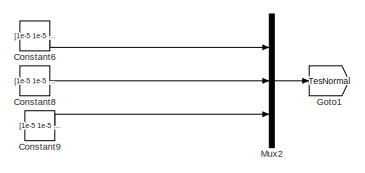
[diagram: root canvas - part 1/13, top center region]
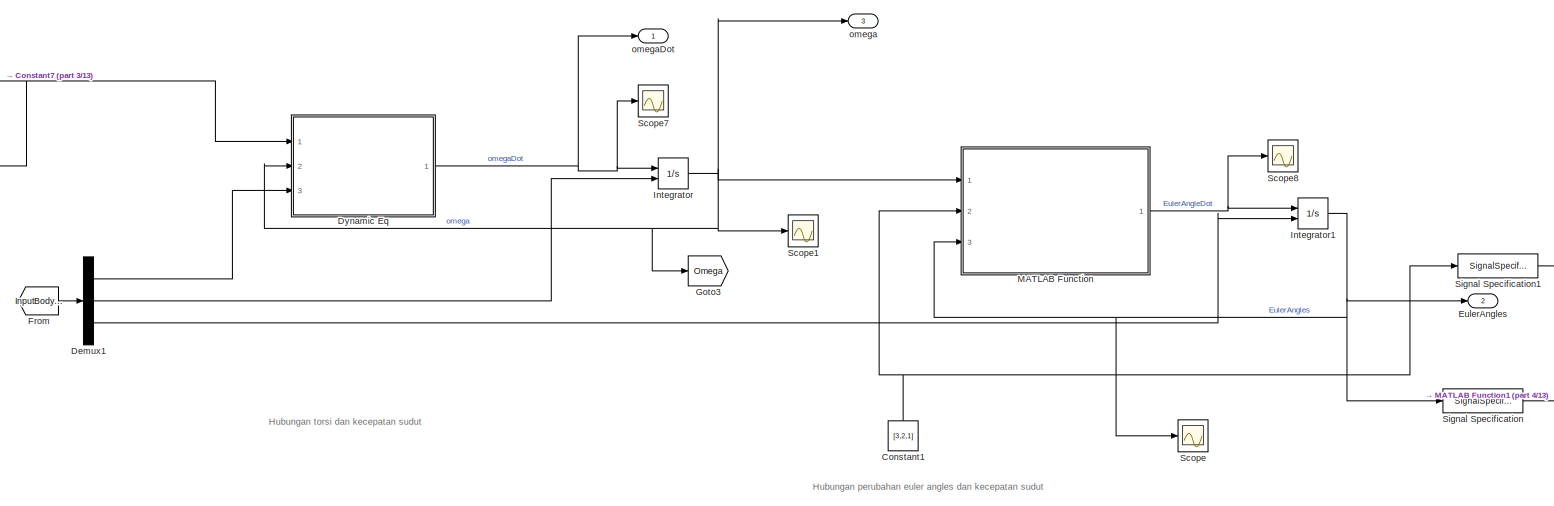
[diagram: root canvas - part 2/13, top center region]
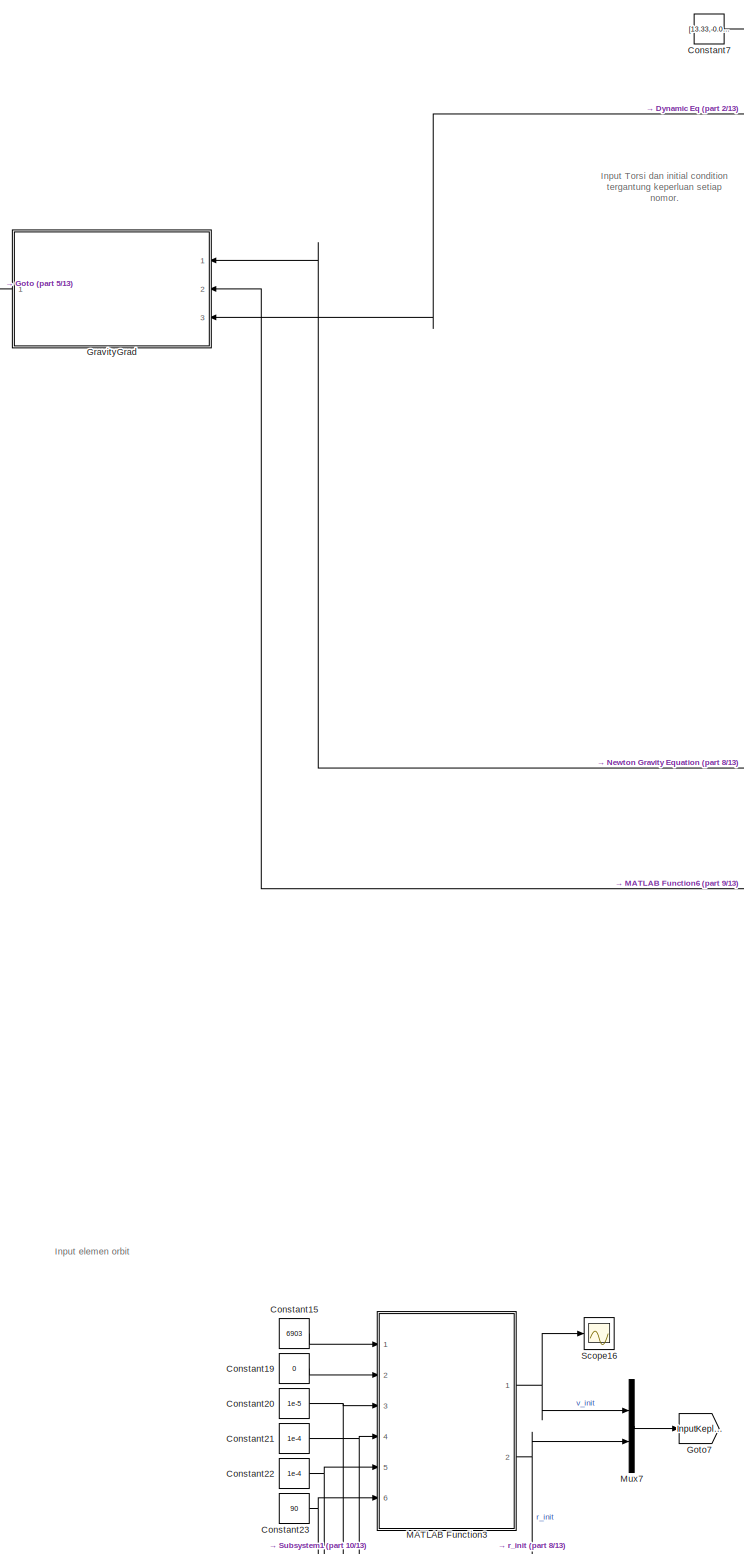
[diagram: root canvas - part 3/13, top left region]
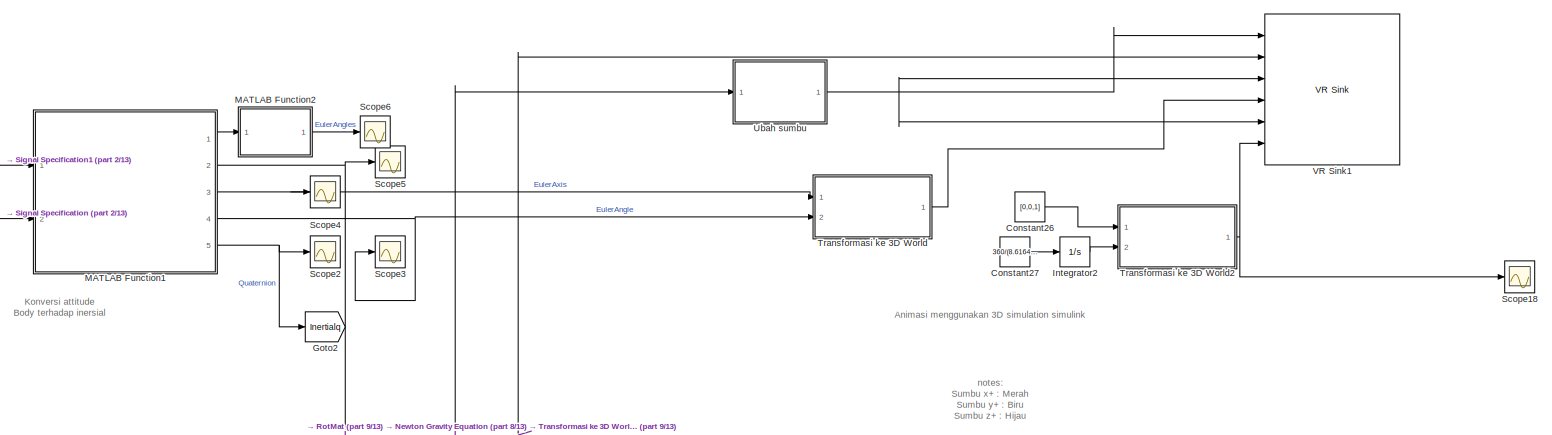
[diagram: root canvas - part 4/13, top right region]
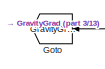
[diagram: root canvas - part 5/13, top left region]
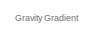
[diagram: root canvas - part 6/13, top left region]
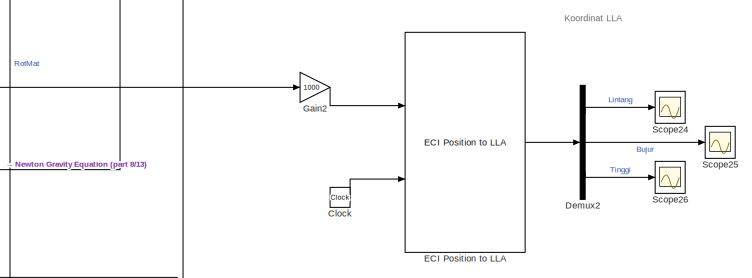
[diagram: root canvas - part 7/13, top right region]
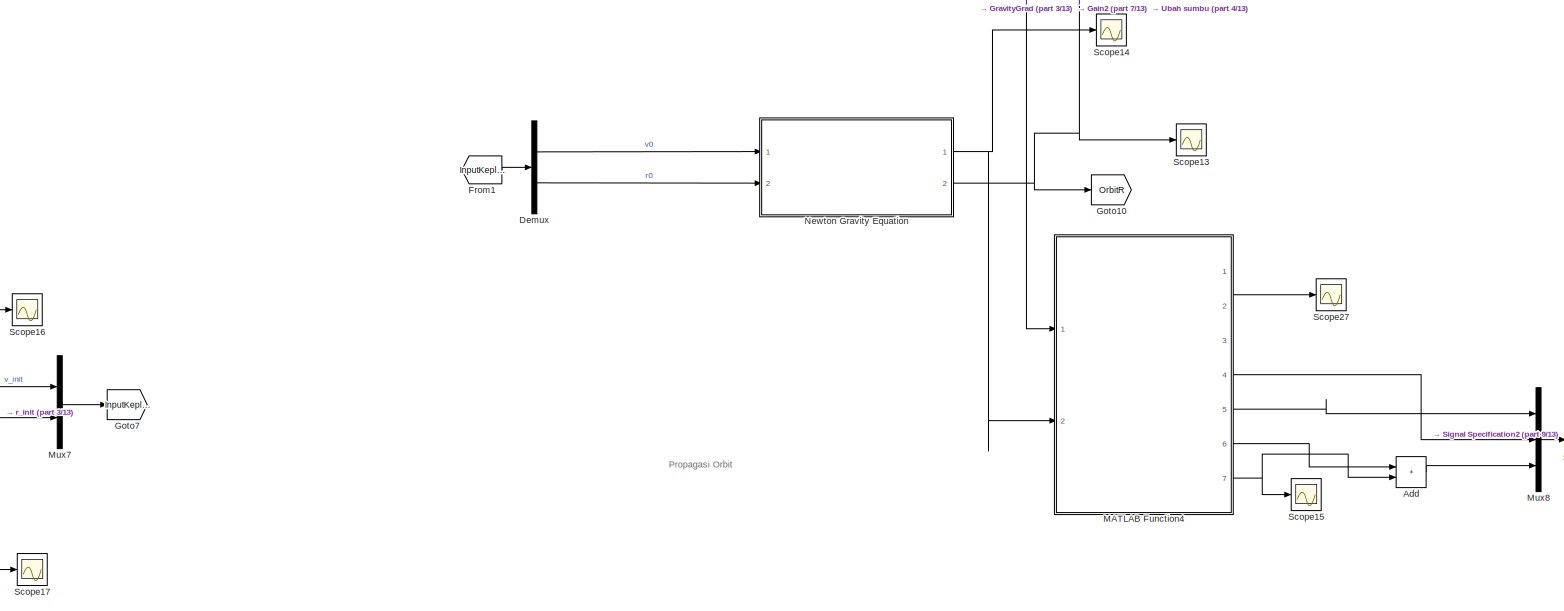
[diagram: root canvas - part 8/13, central region]
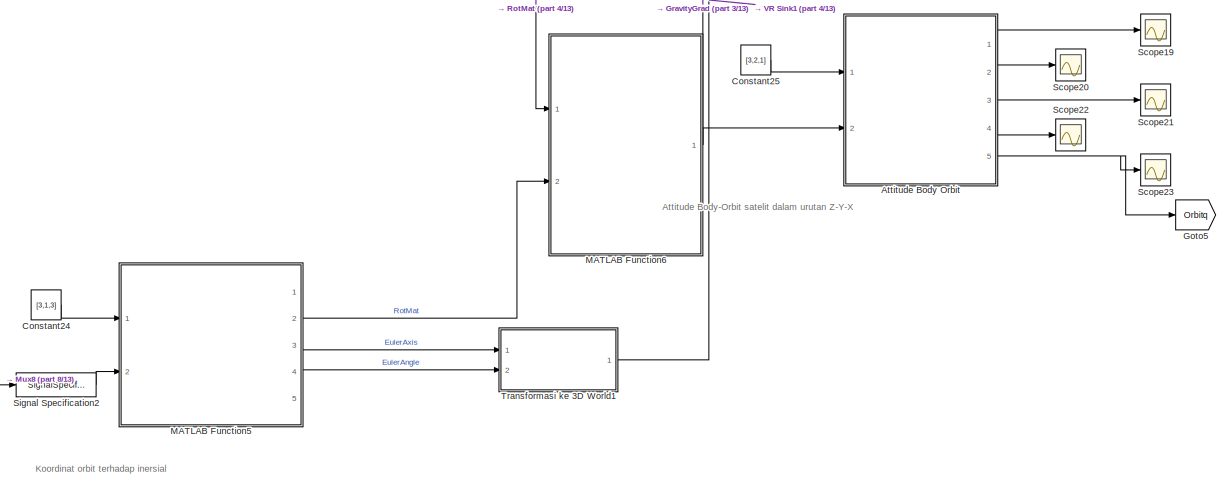
[diagram: root canvas - part 9/13, middle right region]
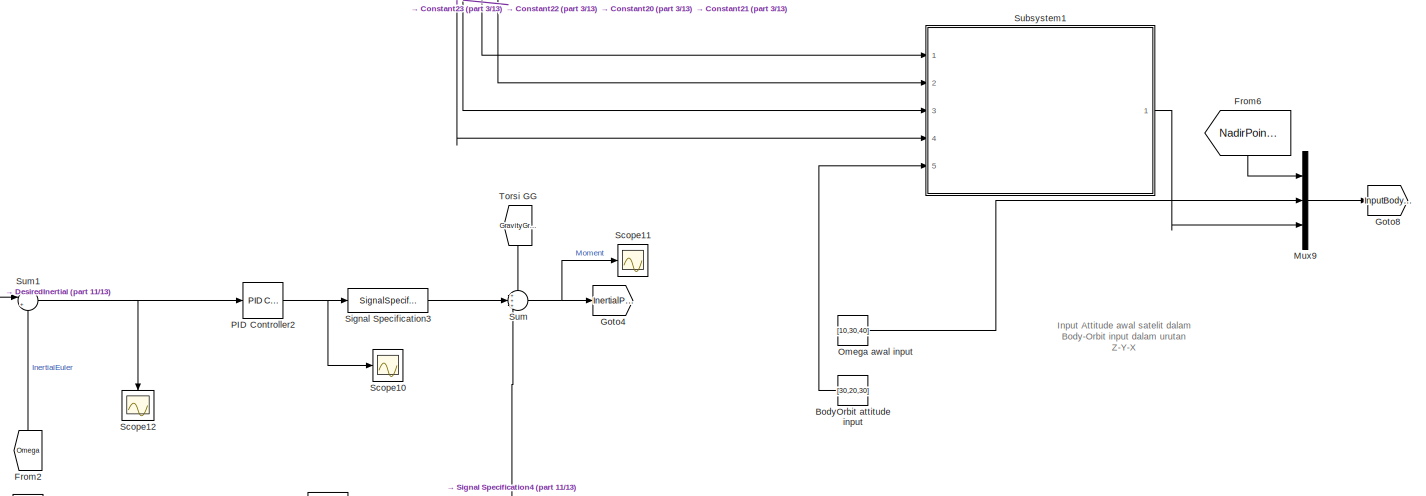
[diagram: root canvas - part 10/13, central region]
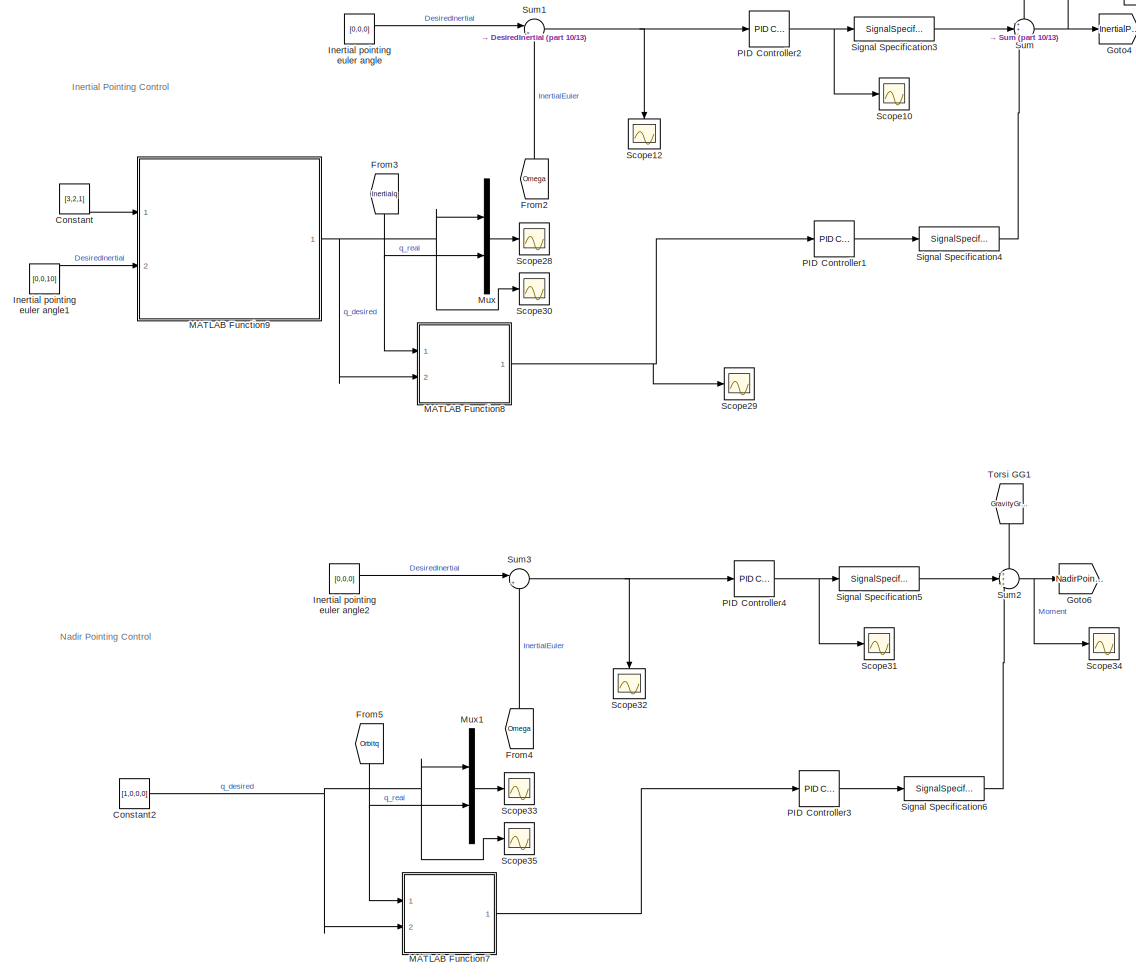
[diagram: root canvas - part 11/13, bottom left region]
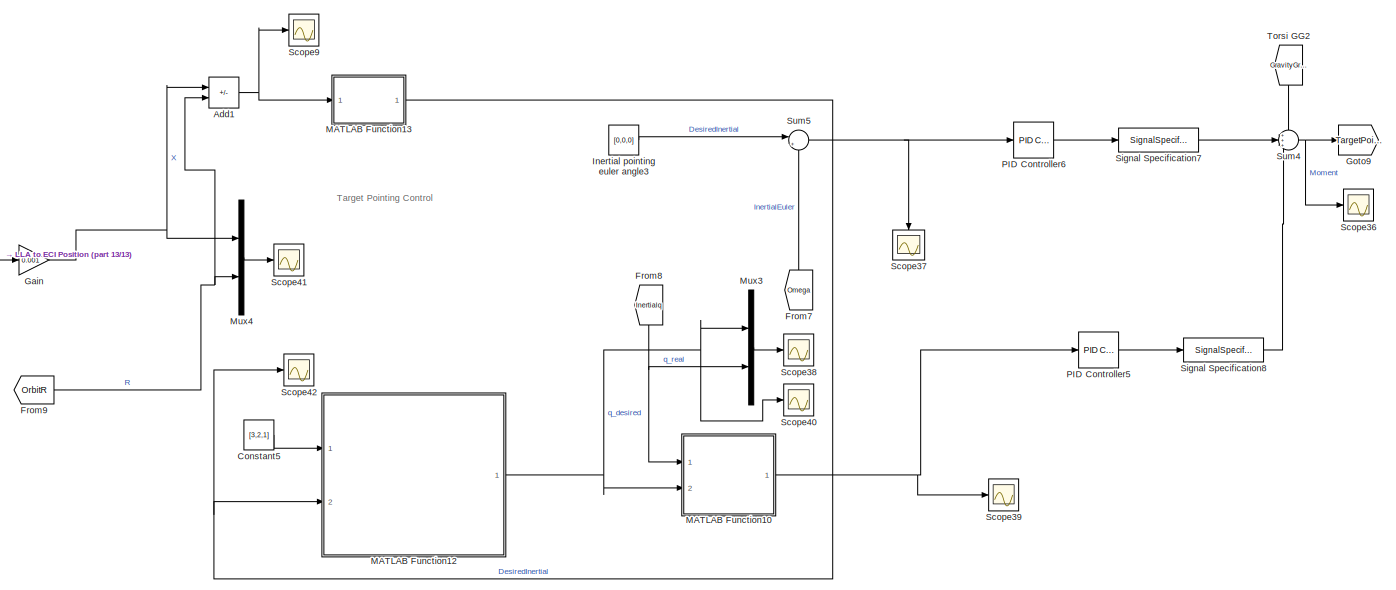
[diagram: root canvas - part 12/13, bottom left region]
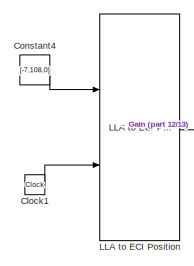
[diagram: root canvas - part 13/13, bottom left region]
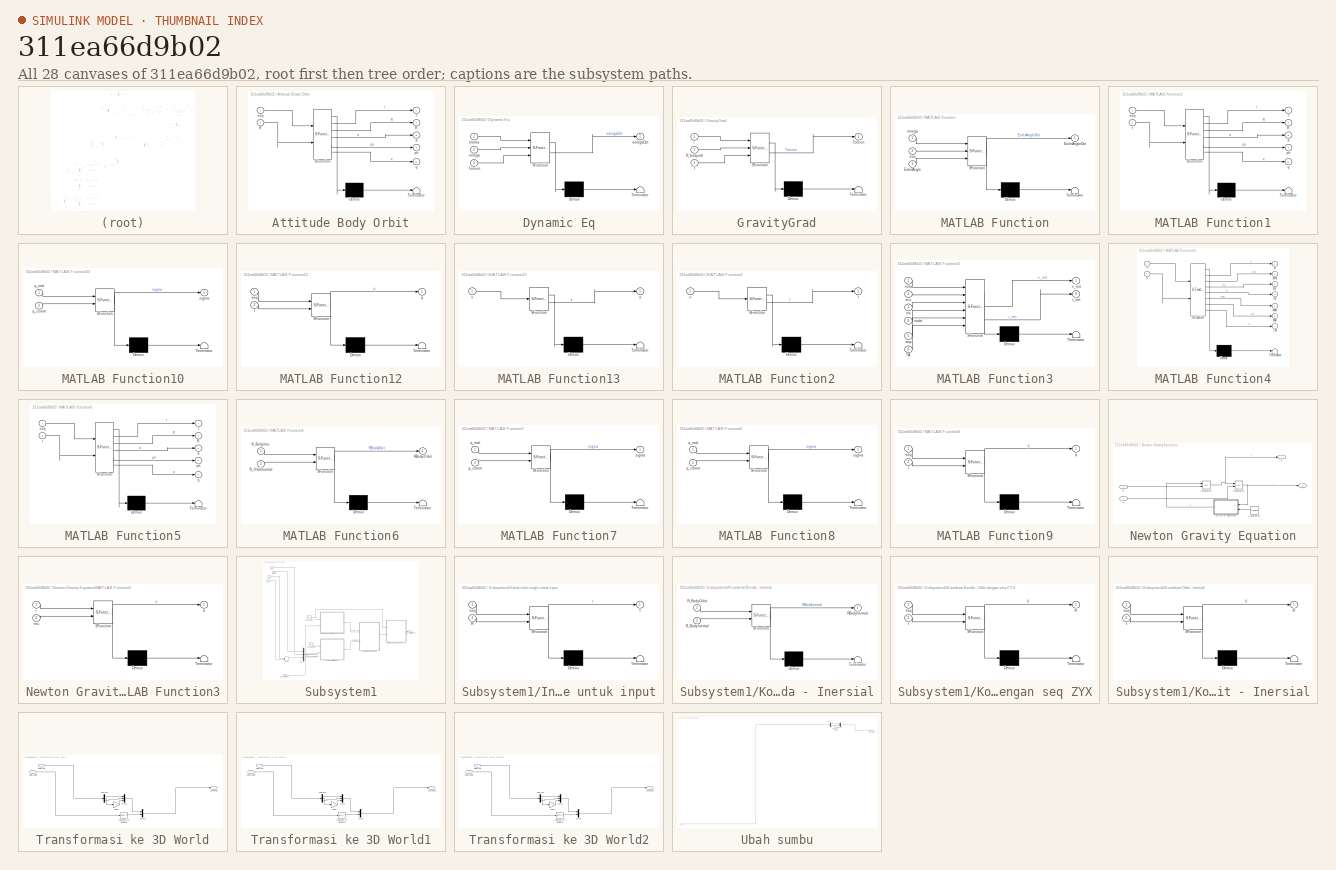
[diagram: thumbnail index - all 28 canvases of the model, root first then tree order]
MODEL slx_311ea66d9b02
KIND model
CONFIG AbsTol = auto
CONFIG EnableMultiTasking = off
CONFIG FixedStep = auto
CONFIG MaxStep = auto
CONFIG MinStep = auto
CONFIG RelTol = 1e-3
CONFIG SampleTimeConstraint = Unconstrained
CONFIG SolverName = ode45
CONFIG StartTime = 0.0
CONFIG StopTime = 900
BLOCK [Sum] Add
  IconShape = rectangular
  Ports = [2, 1]
BLOCK [Sum] Add1
  IconShape = rectangular
  Inputs = +-
  Ports = [2, 1]
BLOCK [SubSystem] Attitude Body Orbit
  ErrorFcn = Stateflow.Translate.translate
  PermitHierarchicalResolution = ExplicitOnly
  Ports = [2, 5]
  RequestExecContextInheritance = off
  SFBlockType = MATLAB Function
  TreatAsAtomicUnit = on
BLOCK [Demux] Attitude Body Orbit/ Demux 
  Outputs = 1
  Ports = [1, 1]
BLOCK [S-Function] Attitude Body Orbit/ SFunction 
  EnableBusSupport = on
  FunctionName = sf_sfun
  PortCounts = [2 6]
  Ports = [2, 6]
  SFcnIsStateOwnerBlock = off
  SFunctionDeploymentMode = off
  Tag = Stateflow S-Function 9
BLOCK [Terminator] Attitude Body Orbit/ Terminator 
BLOCK [Outport] Attitude Body Orbit/R
  Port = 2
BLOCK [Inport] Attitude Body Orbit/R 
  Port = 2
BLOCK [Outport] Attitude Body Orbit/a
  Port = 3
BLOCK [Outport] Attitude Body Orbit/ph
  Port = 4
BLOCK [Outport] Attitude Body Orbit/q
  Port = 5
BLOCK [Inport] Attitude Body Orbit/seq
BLOCK [Outport] Attitude Body Orbit/t
BLOCK [Constant] BodyOrbit attitude input
  Value = [30,20,30]
BLOCK [Clock] Clock
  DisplayTime = on
BLOCK [Clock] Clock1
  DisplayTime = on
BLOCK [Constant] Constant
  Value = [3,2,1]
BLOCK [Constant] Constant1
  NameLocation = right
  Value = [3,2,1]
BLOCK [Constant] Constant15
  Value = 6903
BLOCK [Constant] Constant19
  Value = 0
BLOCK [Constant] Constant2
  Value = [1,0,0,0]
BLOCK [Constant] Constant20
  Value = 1e-5
BLOCK [Constant] Constant21
  Value = 1e-4
BLOCK [Constant] Constant22
  Value = 1e-4
BLOCK [Constant] Constant23
  Value = 90
BLOCK [Constant] Constant24
  Value = [3,1,3]
BLOCK [Constant] Constant25
  Value = [3,2,1]
BLOCK [Constant] Constant26
  Value = [0,0,1]
BLOCK [Constant] Constant27
  Value = 360/(8.616409000000000e+04)
BLOCK [Constant] Constant4
  Value = [-7,108,0]
BLOCK [Constant] Constant5
  Value = [3,2,1]
BLOCK [Constant] Constant6
  Value = [1e-5 1e-5 1e-5]
BLOCK [Constant] Constant7
  Value = [13.33,-0.087,-0.004;-0.087,13.33,-0.03;-0.04,-0.03,1.33]
BLOCK [Constant] Constant8
  Value = [1e-5 1e-5 1e-5]
BLOCK [Constant] Constant9
  Value = [1e-5 1e-5 1e-5]
BLOCK [Demux] Demux
  Outputs = 2
  Ports = [1, 2]
BLOCK [Demux] Demux1
  Outputs = 3
  Ports = [1, 3]
BLOCK [Demux] Demux2
  Outputs = 3
  Ports = [1, 3]
BLOCK [SubSystem] Dynamic Eq
  ErrorFcn = Stateflow.Translate.translate
  PermitHierarchicalResolution = ExplicitOnly
  Ports = [3, 1]
  RequestExecContextInheritance = off
  SFBlockType = MATLAB Function
  TreatAsAtomicUnit = on
BLOCK [Demux] Dynamic Eq/ Demux 
  Outputs = 1
  Ports = [1, 1]
BLOCK [S-Function] Dynamic Eq/ SFunction 
  EnableBusSupport = on
  FunctionName = sf_sfun
  PortCounts = [3 2]
  Ports = [3, 2]
  SFcnIsStateOwnerBlock = off
  SFunctionDeploymentMode = off
  Tag = Stateflow S-Function 14
BLOCK [Terminator] Dynamic Eq/ Terminator 
BLOCK [Inport] Dynamic Eq/Inertia
BLOCK [Inport] Dynamic Eq/Torsion
  Port = 3
BLOCK [Inport] Dynamic Eq/omega
  Port = 2
BLOCK [Outport] Dynamic Eq/omegaDot
BLOCK [Reference] ECI Position to LLA  REF=aerolibtransform2/ECI Position to LLA
  AttributesFormatString = %<red>
  Ports = [2, 1]
  SourceBlock = aerolibtransform2/ECI Position to LLA
  SourceProductBaseCode = AE
  SourceType = ECItoLLA
BLOCK [Outport] EulerAngles
  Port = 2
BLOCK [From] From
  GotoTag = InputBodyOrbit
BLOCK [From] From1
  GotoTag = InputKepler
BLOCK [From] From2
  GotoTag = Omega
  NameLocation = right
BLOCK [From] From3
  GotoTag = Inertialq
  NameLocation = left
BLOCK [From] From4
  GotoTag = Omega
  NameLocation = right
BLOCK [From] From5
  GotoTag = Orbitq
  NameLocation = left
BLOCK [From] From6
  GotoTag = NadirPointing
  NameLocation = left
BLOCK [From] From7
  GotoTag = Omega
  NameLocation = right
BLOCK [From] From8
  GotoTag = Inertialq
  NameLocation = left
BLOCK [From] From9
  GotoTag = OrbitR
BLOCK [Gain] Gain
  Gain = 0.001
BLOCK [Gain] Gain2
  Gain = 1000
BLOCK [Goto] Goto
  GotoTag = GravityGrad
BLOCK [Goto] Goto1
  GotoTag = TesNormal
BLOCK [Goto] Goto10
  GotoTag = OrbitR
BLOCK [Goto] Goto2
  GotoTag = Inertialq
BLOCK [Goto] Goto3
  GotoTag = Omega
BLOCK [Goto] Goto4
  GotoTag = InertialPointing
BLOCK [Goto] Goto5
  GotoTag = Orbitq
BLOCK [Goto] Goto6
  GotoTag = NadirPointing
BLOCK [Goto] Goto7
  GotoTag = InputKepler
BLOCK [Goto] Goto8
  GotoTag = InputBodyOrbit
BLOCK [Goto] Goto9
  GotoTag = TargetPointing
BLOCK [SubSystem] GravityGrad
  ErrorFcn = Stateflow.Translate.translate
  PermitHierarchicalResolution = ExplicitOnly
  Ports = [3, 1]
  RequestExecContextInheritance = off
  SFBlockType = MATLAB Function
  TreatAsAtomicUnit = on
BLOCK [Demux] GravityGrad/ Demux 
  Outputs = 1
  Ports = [1, 1]
BLOCK [S-Function] GravityGrad/ SFunction 
  EnableBusSupport = on
  FunctionName = sf_sfun
  PortCounts = [3 2]
  Ports = [3, 2]
  SFcnIsStateOwnerBlock = off
  SFunctionDeploymentMode = off
  Tag = Stateflow S-Function 15
BLOCK [Terminator] GravityGrad/ Terminator 
BLOCK [Inport] GravityGrad/I
  Port = 3
BLOCK [Inport] GravityGrad/R_bodyorb
  Port = 2
BLOCK [Outport] GravityGrad/Torsion
BLOCK [Inport] GravityGrad/r
BLOCK [Constant] Inertial pointing euler angle
  Value = [0,0,0]
BLOCK [Constant] Inertial pointing euler angle1
  Value = [0,0,10]
BLOCK [Constant] Inertial pointing euler angle2
  Value = [0,0,0]
BLOCK [Constant] Inertial pointing euler angle3
  Value = [0,0,0]
BLOCK [Integrator] Integrator
  InitialCondition = [1,3,4]
  InitialConditionSource = external
  Ports = [2, 1]
BLOCK [Integrator] Integrator1
  InitialCondition = [20,30,40]
  InitialConditionSource = external
  Ports = [2, 1]
BLOCK [Integrator] Integrator2
  InitialCondition = 90
  Ports = [1, 1]
BLOCK [Reference] LLA to ECI Position  REF=aerolibtransform2/LLA to ECI Position
  AttributesFormatString = %<red>
  Ports = [2, 1]
  SourceBlock = aerolibtransform2/LLA to ECI Position
  SourceProductBaseCode = AE
  SourceType = LLAtoECI
BLOCK [SubSystem] MATLAB Function
  ErrorFcn = Stateflow.Translate.translate
  PermitHierarchicalResolution = ExplicitOnly
  Ports = [3, 1]
  RequestExecContextInheritance = off
  SFBlockType = MATLAB Function
  TreatAsAtomicUnit = on
BLOCK [Demux] MATLAB Function/ Demux 
  Outputs = 1
  Ports = [1, 1]
BLOCK [S-Function] MATLAB Function/ SFunction 
  EnableBusSupport = on
  FunctionName = sf_sfun
  PortCounts = [3 2]
  Ports = [3, 2]
  SFcnIsStateOwnerBlock = off
  SFunctionDeploymentMode = off
  Tag = Stateflow S-Function 2
BLOCK [Terminator] MATLAB Function/ Terminator 
BLOCK [Inport] MATLAB Function/EulerAngle
  Port = 3
BLOCK [Outport] MATLAB Function/EulerAngleDot
BLOCK [Inport] MATLAB Function/omega
BLOCK [Inport] MATLAB Function/seq
  Port = 2
BLOCK [SubSystem] MATLAB Function1
  ErrorFcn = Stateflow.Translate.translate
  PermitHierarchicalResolution = ExplicitOnly
  Ports = [2, 5]
  RequestExecContextInheritance = off
  SFBlockType = MATLAB Function
  TreatAsAtomicUnit = on
BLOCK [Demux] MATLAB Function1/ Demux 
  Outputs = 1
  Ports = [1, 1]
BLOCK [S-Function] MATLAB Function1/ SFunction 
  EnableBusSupport = on
  FunctionName = sf_sfun
  PortCounts = [2 6]
  Ports = [2, 6]
  SFcnIsStateOwnerBlock = off
  SFunctionDeploymentMode = off
  Tag = Stateflow S-Function 1
BLOCK [Terminator] MATLAB Function1/ Terminator 
BLOCK [Outport] MATLAB Function1/R
  Port = 2
BLOCK [Outport] MATLAB Function1/a
  Port = 3
BLOCK [Outport] MATLAB Function1/ph
  Port = 4
BLOCK [Outport] MATLAB Function1/q
  Port = 5
BLOCK [Inport] MATLAB Function1/seq
BLOCK [Outport] MATLAB Function1/t
BLOCK [Inport] MATLAB Function1/t 
  Port = 2
BLOCK [SubSystem] MATLAB Function10
  ErrorFcn = Stateflow.Translate.translate
  PermitHierarchicalResolution = ExplicitOnly
  Ports = [2, 1]
  RequestExecContextInheritance = off
  SFBlockType = MATLAB Function
  TreatAsAtomicUnit = on
BLOCK [Demux] MATLAB Function10/ Demux 
  Outputs = 1
  Ports = [1, 1]
BLOCK [S-Function] MATLAB Function10/ SFunction 
  EnableBusSupport = on
  FunctionName = sf_sfun
  PortCounts = [2 2]
  Ports = [2, 2]
  SFcnIsStateOwnerBlock = off
  SFunctionDeploymentMode = off
  Tag = Stateflow S-Function 16
BLOCK [Terminator] MATLAB Function10/ Terminator 
BLOCK [Inport] MATLAB Function10/q_comm
  Port = 2
BLOCK [Inport] MATLAB Function10/q_real
BLOCK [Outport] MATLAB Function10/sigma
BLOCK [SubSystem] MATLAB Function12
  ErrorFcn = Stateflow.Translate.translate
  PermitHierarchicalResolution = ExplicitOnly
  Ports = [2, 1]
  RequestExecContextInheritance = off
  SFBlockType = MATLAB Function
  TreatAsAtomicUnit = on
BLOCK [Demux] MATLAB Function12/ Demux 
  Outputs = 1
  Ports = [1, 1]
BLOCK [S-Function] MATLAB Function12/ SFunction 
  EnableBusSupport = on
  FunctionName = sf_sfun
  PortCounts = [2 2]
  Ports = [2, 2]
  SFcnIsStateOwnerBlock = off
  SFunctionDeploymentMode = off
  Tag = Stateflow S-Function 21
BLOCK [Terminator] MATLAB Function12/ Terminator 
BLOCK [Outport] MATLAB Function12/q
BLOCK [Inport] MATLAB Function12/seq
BLOCK [Inport] MATLAB Function12/t
  Port = 2
BLOCK [SubSystem] MATLAB Function13
  ErrorFcn = Stateflow.Translate.translate
  PermitHierarchicalResolution = ExplicitOnly
  Ports = [1, 1]
  RequestExecContextInheritance = off
  SFBlockType = MATLAB Function
  TreatAsAtomicUnit = on
BLOCK [Demux] MATLAB Function13/ Demux 
  Outputs = 1
  Ports = [1, 1]
BLOCK [S-Function] MATLAB Function13/ SFunction 
  EnableBusSupport = on
  FunctionName = sf_sfun
  PortCounts = [1 2]
  Ports = [1, 2]
  SFcnIsStateOwnerBlock = off
  SFunctionDeploymentMode = off
  Tag = Stateflow S-Function 22
BLOCK [Terminator] MATLAB Function13/ Terminator 
BLOCK [Inport] MATLAB Function13/u
BLOCK [Outport] MATLAB Function13/y
BLOCK [SubSystem] MATLAB Function2
  ErrorFcn = Stateflow.Translate.translate
  PermitHierarchicalResolution = ExplicitOnly
  Ports = [1, 1]
  RequestExecContextInheritance = off
  SFBlockType = MATLAB Function
  TreatAsAtomicUnit = on
BLOCK [Demux] MATLAB Function2/ Demux 
  Outputs = 1
  Ports = [1, 1]
BLOCK [S-Function] MATLAB Function2/ SFunction 
  EnableBusSupport = on
  FunctionName = sf_sfun
  PortCounts = [1 2]
  Ports = [1, 2]
  SFcnIsStateOwnerBlock = off
  SFunctionDeploymentMode = off
  Tag = Stateflow S-Function 3
BLOCK [Terminator] MATLAB Function2/ Terminator 
BLOCK [Outport] MATLAB Function2/t
BLOCK [Inport] MATLAB Function2/u
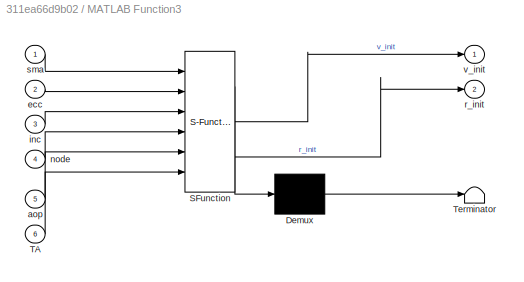
BLOCK [SubSystem] MATLAB Function3
  ErrorFcn = Stateflow.Translate.translate
  PermitHierarchicalResolution = ExplicitOnly
  Ports = [6, 2]
  RequestExecContextInheritance = off
  SFBlockType = MATLAB Function
  TreatAsAtomicUnit = on
BLOCK [Demux] MATLAB Function3/ Demux 
  Outputs = 1
  Ports = [1, 1]
BLOCK [S-Function] MATLAB Function3/ SFunction 
  EnableBusSupport = on
  FunctionName = sf_sfun
  PortCounts = [6 3]
  Ports = [6, 3]
  SFcnIsStateOwnerBlock = off
  SFunctionDeploymentMode = off
  Tag = Stateflow S-Function 5
BLOCK [Terminator] MATLAB Function3/ Terminator 
BLOCK [Inport] MATLAB Function3/TA
  Port = 6
BLOCK [Inport] MATLAB Function3/aop
  Port = 5
BLOCK [Inport] MATLAB Function3/ecc
  Port = 2
BLOCK [Inport] MATLAB Function3/inc
  Port = 3
BLOCK [Inport] MATLAB Function3/node
  Port = 4
BLOCK [Outport] MATLAB Function3/r_init
  Port = 2
BLOCK [Inport] MATLAB Function3/sma
BLOCK [Outport] MATLAB Function3/v_init
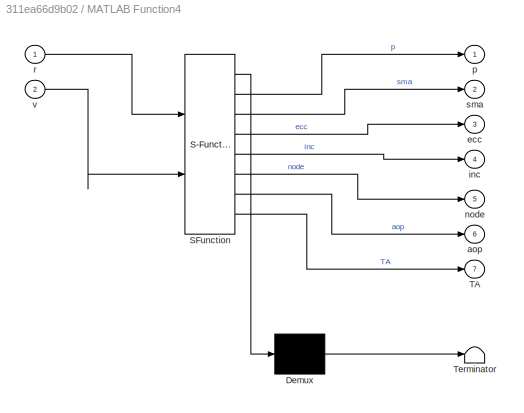
BLOCK [SubSystem] MATLAB Function4
  ErrorFcn = Stateflow.Translate.translate
  PermitHierarchicalResolution = ExplicitOnly
  Ports = [2, 7]
  RequestExecContextInheritance = off
  SFBlockType = MATLAB Function
  TreatAsAtomicUnit = on
BLOCK [Demux] MATLAB Function4/ Demux 
  Outputs = 1
  Ports = [1, 1]
BLOCK [S-Function] MATLAB Function4/ SFunction 
  EnableBusSupport = on
  FunctionName = sf_sfun
  PortCounts = [2 8]
  Ports = [2, 8]
  SFcnIsStateOwnerBlock = off
  SFunctionDeploymentMode = off
  Tag = Stateflow S-Function 6
BLOCK [Terminator] MATLAB Function4/ Terminator 
BLOCK [Outport] MATLAB Function4/TA
  Port = 7
BLOCK [Outport] MATLAB Function4/aop
  Port = 6
BLOCK [Outport] MATLAB Function4/ecc
  Port = 3
BLOCK [Outport] MATLAB Function4/inc
  Port = 4
BLOCK [Outport] MATLAB Function4/node
  Port = 5
BLOCK [Outport] MATLAB Function4/p
BLOCK [Inport] MATLAB Function4/r
BLOCK [Outport] MATLAB Function4/sma
  Port = 2
BLOCK [Inport] MATLAB Function4/v
  Port = 2
BLOCK [SubSystem] MATLAB Function5
  ErrorFcn = Stateflow.Translate.translate
  PermitHierarchicalResolution = ExplicitOnly
  Ports = [2, 5]
  RequestExecContextInheritance = off
  SFBlockType = MATLAB Function
  TreatAsAtomicUnit = on
BLOCK [Demux] MATLAB Function5/ Demux 
  Outputs = 1
  Ports = [1, 1]
BLOCK [S-Function] MATLAB Function5/ SFunction 
  EnableBusSupport = on
  FunctionName = sf_sfun
  PortCounts = [2 6]
  Ports = [2, 6]
  SFcnIsStateOwnerBlock = off
  SFunctionDeploymentMode = off
  Tag = Stateflow S-Function 7
BLOCK [Terminator] MATLAB Function5/ Terminator 
BLOCK [Outport] MATLAB Function5/R
  Port = 2
BLOCK [Outport] MATLAB Function5/a
  Port = 3
BLOCK [Outport] MATLAB Function5/ph
  Port = 4
BLOCK [Outport] MATLAB Function5/q
  Port = 5
BLOCK [Inport] MATLAB Function5/seq
BLOCK [Outport] MATLAB Function5/t
BLOCK [Inport] MATLAB Function5/t 
  Port = 2
BLOCK [SubSystem] MATLAB Function6
  ErrorFcn = Stateflow.Translate.translate
  PermitHierarchicalResolution = ExplicitOnly
  Ports = [2, 1]
  RequestExecContextInheritance = off
  SFBlockType = MATLAB Function
  TreatAsAtomicUnit = on
BLOCK [Demux] MATLAB Function6/ Demux 
  Outputs = 1
  Ports = [1, 1]
BLOCK [S-Function] MATLAB Function6/ SFunction 
  EnableBusSupport = on
  FunctionName = sf_sfun
  PortCounts = [2 2]
  Ports = [2, 2]
  SFcnIsStateOwnerBlock = off
  SFunctionDeploymentMode = off
  Tag = Stateflow S-Function 8
BLOCK [Terminator] MATLAB Function6/ Terminator 
BLOCK [Outport] MATLAB Function6/RBodyOrbit
BLOCK [Inport] MATLAB Function6/R_BodyIner
BLOCK [Inport] MATLAB Function6/R_OrbitInertial
  Port = 2
BLOCK [SubSystem] MATLAB Function7
  ErrorFcn = Stateflow.Translate.translate
  PermitHierarchicalResolution = ExplicitOnly
  Ports = [2, 1]
  RequestExecContextInheritance = off
  SFBlockType = MATLAB Function
  TreatAsAtomicUnit = on
BLOCK [Demux] MATLAB Function7/ Demux 
  Outputs = 1
  Ports = [1, 1]
BLOCK [S-Function] MATLAB Function7/ SFunction 
  EnableBusSupport = on
  FunctionName = sf_sfun
  PortCounts = [2 2]
  Ports = [2, 2]
  SFcnIsStateOwnerBlock = off
  SFunctionDeploymentMode = off
  Tag = Stateflow S-Function 19
BLOCK [Terminator] MATLAB Function7/ Terminator 
BLOCK [Inport] MATLAB Function7/q_comm
  Port = 2
BLOCK [Inport] MATLAB Function7/q_real
BLOCK [Outport] MATLAB Function7/sigma
BLOCK [SubSystem] MATLAB Function8
  ErrorFcn = Stateflow.Translate.translate
  PermitHierarchicalResolution = ExplicitOnly
  Ports = [2, 1]
  RequestExecContextInheritance = off
  SFBlockType = MATLAB Function
  TreatAsAtomicUnit = on
BLOCK [Demux] MATLAB Function8/ Demux 
  Outputs = 1
  Ports = [1, 1]
BLOCK [S-Function] MATLAB Function8/ SFunction 
  EnableBusSupport = on
  FunctionName = sf_sfun
  PortCounts = [2 2]
  Ports = [2, 2]
  SFcnIsStateOwnerBlock = off
  SFunctionDeploymentMode = off
  Tag = Stateflow S-Function 17
BLOCK [Terminator] MATLAB Function8/ Terminator 
BLOCK [Inport] MATLAB Function8/q_comm
  Port = 2
BLOCK [Inport] MATLAB Function8/q_real
BLOCK [Outport] MATLAB Function8/sigma
BLOCK [SubSystem] MATLAB Function9
  ErrorFcn = Stateflow.Translate.translate
  PermitHierarchicalResolution = ExplicitOnly
  Ports = [2, 1]
  RequestExecContextInheritance = off
  SFBlockType = MATLAB Function
  TreatAsAtomicUnit = on
BLOCK [Demux] MATLAB Function9/ Demux 
  Outputs = 1
  Ports = [1, 1]
BLOCK [S-Function] MATLAB Function9/ SFunction 
  EnableBusSupport = on
  FunctionName = sf_sfun
  PortCounts = [2 2]
  Ports = [2, 2]
  SFcnIsStateOwnerBlock = off
  SFunctionDeploymentMode = off
  Tag = Stateflow S-Function 18
BLOCK [Terminator] MATLAB Function9/ Terminator 
BLOCK [Outport] MATLAB Function9/q
BLOCK [Inport] MATLAB Function9/seq
BLOCK [Inport] MATLAB Function9/t
  Port = 2
BLOCK [Mux] Mux
  DisplayOption = bar
  Inputs = 2
  Ports = [2, 1]
BLOCK [Mux] Mux1
  DisplayOption = bar
  Inputs = 2
  Ports = [2, 1]
BLOCK [Mux] Mux2
  DisplayOption = bar
  Inputs = 3
  Ports = [3, 1]
BLOCK [Mux] Mux3
  DisplayOption = bar
  Inputs = 2
  Ports = [2, 1]
BLOCK [Mux] Mux4
  DisplayOption = bar
  Inputs = 2
  Ports = [2, 1]
BLOCK [Mux] Mux7
  DisplayOption = bar
  Inputs = 2
  Ports = [2, 1]
BLOCK [Mux] Mux8
  DisplayOption = bar
  Inputs = 3
  Ports = [3, 1]
BLOCK [Mux] Mux9
  DisplayOption = bar
  Inputs = 3
  Ports = [3, 1]
BLOCK [SubSystem] Newton Gravity Equation
  Ports = [2, 2]
  RequestExecContextInheritance = off
BLOCK [Constant] Newton Gravity Equation/Constant15
  Value = 3.986e5
BLOCK [Integrator] Newton Gravity Equation/Integrator2
  InitialConditionSource = external
  Ports = [2, 1]
BLOCK [Integrator] Newton Gravity Equation/Integrator3
  InitialConditionSource = external
  Ports = [2, 1]
BLOCK [SubSystem] Newton Gravity Equation/MATLAB Function3
  ErrorFcn = Stateflow.Translate.translate
  PermitHierarchicalResolution = ExplicitOnly
  Ports = [2, 1]
  RequestExecContextInheritance = off
  SFBlockType = MATLAB Function
  TreatAsAtomicUnit = on
BLOCK [Demux] Newton Gravity Equation/MATLAB Function3/ Demux 
  Outputs = 1
  Ports = [1, 1]
BLOCK [S-Function] Newton Gravity Equation/MATLAB Function3/ SFunction 
  EnableBusSupport = on
  FunctionName = sf_sfun
  PortCounts = [2 2]
  Ports = [2, 2]
  SFcnIsStateOwnerBlock = off
  SFunctionDeploymentMode = off
  Tag = Stateflow S-Function 4
BLOCK [Terminator] Newton Gravity Equation/MATLAB Function3/ Terminator 
BLOCK [Outport] Newton Gravity Equation/MATLAB Function3/a
BLOCK [Inport] Newton Gravity Equation/MATLAB Function3/mu
  Port = 2
BLOCK [Inport] Newton Gravity Equation/MATLAB Function3/r
BLOCK [Outport] Newton Gravity Equation/r
  Port = 2
BLOCK [Inport] Newton Gravity Equation/r0
  Port = 2
BLOCK [Outport] Newton Gravity Equation/v
BLOCK [Inport] Newton Gravity Equation/v0
BLOCK [Constant] Omega awal input
  Value = [10,30,40]
BLOCK [Reference] PID Controller1  REF=slpidlib/PID Controller
  Ports = [1, 1]
  SourceBlock = slpidlib/PID Controller
  SourceProductBaseCode = SL
  SourceType = PID 1dof
BLOCK [Reference] PID Controller2  REF=slpidlib/PID Controller
  Ports = [1, 1]
  SourceBlock = slpidlib/PID Controller
  SourceProductBaseCode = SL
  SourceType = PID 1dof
BLOCK [Reference] PID Controller3  REF=slpidlib/PID Controller
  Ports = [1, 1]
  SourceBlock = slpidlib/PID Controller
  SourceProductBaseCode = SL
  SourceType = PID 1dof
BLOCK [Reference] PID Controller4  REF=slpidlib/PID Controller
  Ports = [1, 1]
  SourceBlock = slpidlib/PID Controller
  SourceProductBaseCode = SL
  SourceType = PID 1dof
BLOCK [Reference] PID Controller5  REF=slpidlib/PID Controller
  Ports = [1, 1]
  SourceBlock = slpidlib/PID Controller
  SourceProductBaseCode = SL
  SourceType = PID 1dof
BLOCK [Reference] PID Controller6  REF=slpidlib/PID Controller
  Ports = [1, 1]
  SourceBlock = slpidlib/PID Controller
  SourceProductBaseCode = SL
  SourceType = PID 1dof
BLOCK [Scope] Scope
  Floating = off
  NumInputPorts = 1
  Ports = [1]
  ScopeSpecificationString = Simulink.scopes.TimeScopeBlockCfg('CurrentConfiguration', extmgr.ConfigurationSet(extmgr.Configuration('Core','General UI',true),extmgr.Configuration('Core','Source UI',true),extmgr.Configuration('Sources','WiredSimulink',true),extmgr.Configuration('Visuals','Time Domain',true,'SerializedDisplays',{struct('MinYLimReal','-611.76004','MaxYLimReal','367.18628','YLabelReal','','MinYLimMag',' 0.00000',...<+1452ch>
BLOCK [Scope] Scope1
  Floating = off
  NumInputPorts = 1
  Ports = [1]
  ScopeSpecificationString = Simulink.scopes.TimeScopeBlockCfg('CurrentConfiguration', extmgr.ConfigurationSet(extmgr.Configuration('Core','General UI',true),extmgr.Configuration('Core','Source UI',true),extmgr.Configuration('Sources','WiredSimulink',true,'DataLoggingVariableName','ScopeData1'),extmgr.Configuration('Visuals','Time Domain',true,'SerializedDisplays',{struct('MinYLimReal','-5.08929','MaxYLimReal','45.00992','YLa...<+1465ch>
BLOCK [Scope] Scope10
  Floating = off
  NumInputPorts = 1
  Ports = [1]
  ScopeSpecificationString = Simulink.scopes.TimeScopeBlockCfg('CurrentConfiguration', extmgr.ConfigurationSet(extmgr.Configuration('Core','General UI',true),extmgr.Configuration('Core','Source UI',true),extmgr.Configuration('Sources','WiredSimulink',true,'DataLoggingVariableName','ScopeData2'),extmgr.Configuration('Visuals','Time Domain',true,'SerializedDisplays',{struct('MinYLimReal','-4.76433','MaxYLimReal','2.87901','YLab...<+1470ch>
BLOCK [Scope] Scope11
  Floating = off
  NumInputPorts = 1
  Ports = [1]
  ScopeSpecificationString = Simulink.scopes.TimeScopeBlockCfg('CurrentConfiguration', extmgr.ConfigurationSet(extmgr.Configuration('Core','General UI',true),extmgr.Configuration('Core','Source UI',true),extmgr.Configuration('Sources','WiredSimulink',true,'DataLoggingVariableName','ScopeData3'),extmgr.Configuration('Visuals','Time Domain',true,'SerializedDisplays',{struct('MinYLimReal','-4.78139','MaxYLimReal','3.92299','YLab...<+1443ch>
BLOCK [Scope] Scope12
  Floating = off
  NameLocation = left
  NumInputPorts = 1
  Ports = [1]
  ScopeSpecificationString = Simulink.scopes.TimeScopeBlockCfg('CurrentConfiguration', extmgr.ConfigurationSet(extmgr.Configuration('Core','General UI',true),extmgr.Configuration('Core','Source UI',true),extmgr.Configuration('Sources','WiredSimulink',true,'DataLoggingVariableName','ScopeData1'),extmgr.Configuration('Visuals','Time Domain',true,'SerializedDisplays',{struct('MinYLimReal','-224.99832','MaxYLimReal','224.99645','...<+1451ch>
BLOCK [Scope] Scope13
  Floating = off
  NumInputPorts = 1
  Ports = [1]
  ScopeSpecificationString = Simulink.scopes.TimeScopeBlockCfg('CurrentConfiguration', extmgr.ConfigurationSet(extmgr.Configuration('Core','General UI',true),extmgr.Configuration('Core','Source UI',true),extmgr.Configuration('Sources','WiredSimulink',true,'DataLoggingVariableName','ScopeData1'),extmgr.Configuration('Visuals','Time Domain',true,'SerializedDisplays',{struct('MinYLimReal','-2942.75526','MaxYLimReal','7996.97281'...<+1524ch>
BLOCK [Scope] Scope14
  Floating = off
  NumInputPorts = 1
  Ports = [1]
  ScopeSpecificationString = Simulink.scopes.TimeScopeBlockCfg('CurrentConfiguration', extmgr.ConfigurationSet(extmgr.Configuration('Core','General UI',true),extmgr.Configuration('Core','Source UI',true),extmgr.Configuration('Sources','WiredSimulink',true,'DataLoggingVariableName','ScopeData2'),extmgr.Configuration('Visuals','Time Domain',true,'SerializedDisplays',{struct('MinYLimReal','-9.1232','MaxYLimReal','7.48221','YLabe...<+1471ch>
BLOCK [Scope] Scope15
  Floating = off
  NumInputPorts = 1
  Ports = [1]
  ScopeSpecificationString = Simulink.scopes.TimeScopeBlockCfg('CurrentConfiguration', extmgr.ConfigurationSet(extmgr.Configuration('Core','General UI',true),extmgr.Configuration('Core','Source UI',true),extmgr.Configuration('Sources','WiredSimulink',true,'DataLoggingVariableName','ScopeData3'),extmgr.Configuration('Visuals','Time Domain',true,'SerializedDisplays',{struct('MinYLimReal','-9.95551','MaxYLimReal','89.60063','YLa...<+1394ch>
BLOCK [Scope] Scope16
  Floating = off
  NumInputPorts = 1
  Ports = [1]
  ScopeSpecificationString = Simulink.scopes.TimeScopeBlockCfg('CurrentConfiguration', extmgr.ConfigurationSet(extmgr.Configuration('Core','General UI',true),extmgr.Configuration('Core','Source UI',true),extmgr.Configuration('Sources','WiredSimulink',true,'DataLoggingVariableName','ScopeData4'),extmgr.Configuration('Visuals','Time Domain',true,'SerializedDisplays',{struct('MinYLimReal','-0.72775','MaxYLimReal','6.54938','YLab...<+1419ch>
BLOCK [Scope] Scope17
  Floating = off
  NumInputPorts = 1
  Ports = [1]
  ScopeSpecificationString = Simulink.scopes.TimeScopeBlockCfg('CurrentConfiguration', extmgr.ConfigurationSet(extmgr.Configuration('Core','General UI',true),extmgr.Configuration('Core','Source UI',true),extmgr.Configuration('Sources','WiredSimulink',true,'DataLoggingVariableName','ScopeData5'),extmgr.Configuration('Visuals','Time Domain',true,'SerializedDisplays',{struct('MinYLimReal','-862.76795','MaxYLimReal','7765.09611',...<+1438ch>
BLOCK [Scope] Scope18
  Floating = off
  NumInputPorts = 1
  Ports = [1]
  ScopeSpecificationString = Simulink.scopes.TimeScopeBlockCfg('CurrentConfiguration', extmgr.ConfigurationSet(extmgr.Configuration('Core','General UI',true),extmgr.Configuration('Core','Source UI',true),extmgr.Configuration('Sources','WiredSimulink',true,'DataLoggingVariableName','ScopeData6'),extmgr.Configuration('Visuals','Time Domain',true,'SerializedDisplays',{struct('MinYLimReal','-0.19859','MaxYLimReal','1.78735','YLab...<+1532ch>
BLOCK [Scope] Scope19
  Floating = off
  NumInputPorts = 1
  Ports = [1]
  ScopeSpecificationString = Simulink.scopes.TimeScopeBlockCfg('CurrentConfiguration', extmgr.ConfigurationSet(extmgr.Configuration('Core','General UI',true),extmgr.Configuration('Core','Source UI',true),extmgr.Configuration('Sources','WiredSimulink',true,'DataLoggingVariableName','ScopeData1'),extmgr.Configuration('Visuals','Time Domain',true,'SerializedDisplays',{struct('MinYLimReal','-24.29403','MaxYLimReal','53.18651','YL...<+1495ch>
BLOCK [Scope] Scope2
  Floating = off
  NumInputPorts = 1
  Ports = [1]
  ScopeSpecificationString = Simulink.scopes.TimeScopeBlockCfg('CurrentConfiguration', extmgr.ConfigurationSet(extmgr.Configuration('Core','General UI',true),extmgr.Configuration('Core','Source UI',true),extmgr.Configuration('Sources','WiredSimulink',true,'DataLoggingVariableName','ScopeData1'),extmgr.Configuration('Visuals','Time Domain',true,'SerializedDisplays',{struct('MinYLimReal','-1.39758','MaxYLimReal','1.13639','YLab...<+1491ch>
BLOCK [Scope] Scope20
  Floating = off
  NumInputPorts = 1
  Ports = [1]
  ScopeSpecificationString = Simulink.scopes.TimeScopeBlockCfg('CurrentConfiguration', extmgr.ConfigurationSet(extmgr.Configuration('Core','General UI',true),extmgr.Configuration('Core','Source UI',true),extmgr.Configuration('Sources','WiredSimulink',true,'DataLoggingVariableName','ScopeData2'),extmgr.Configuration('Visuals','Time Domain',true),extmgr.Configuration('Tools','Plot Navigation',true),extmgr.Configuration('Tools',...<+40ch>
BLOCK [Scope] Scope21
  Floating = off
  NumInputPorts = 1
  Ports = [1]
  ScopeSpecificationString = Simulink.scopes.TimeScopeBlockCfg('CurrentConfiguration', extmgr.ConfigurationSet(extmgr.Configuration('Core','General UI',true),extmgr.Configuration('Core','Source UI',true),extmgr.Configuration('Sources','WiredSimulink',true,'DataLoggingVariableName','ScopeData3'),extmgr.Configuration('Visuals','Time Domain',true),extmgr.Configuration('Tools','Plot Navigation',true),extmgr.Configuration('Tools',...<+40ch>
BLOCK [Scope] Scope22
  Floating = off
  NumInputPorts = 1
  Ports = [1]
  ScopeSpecificationString = Simulink.scopes.TimeScopeBlockCfg('CurrentConfiguration', extmgr.ConfigurationSet(extmgr.Configuration('Core','General UI',true),extmgr.Configuration('Core','Source UI',true),extmgr.Configuration('Sources','WiredSimulink',true,'DataLoggingVariableName','ScopeData4'),extmgr.Configuration('Visuals','Time Domain',true),extmgr.Configuration('Tools','Plot Navigation',true),extmgr.Configuration('Tools',...<+40ch>
BLOCK [Scope] Scope23
  Floating = off
  NumInputPorts = 1
  Ports = [1]
  ScopeSpecificationString = Simulink.scopes.TimeScopeBlockCfg('CurrentConfiguration', extmgr.ConfigurationSet(extmgr.Configuration('Core','General UI',true),extmgr.Configuration('Core','Source UI',true),extmgr.Configuration('Sources','WiredSimulink',true,'DataLoggingVariableName','ScopeData5'),extmgr.Configuration('Visuals','Time Domain',true,'SerializedDisplays',{struct('MinYLimReal','-0.28696','MaxYLimReal','1.143','YLabel...<+1452ch>
BLOCK [Scope] Scope24
  Floating = off
  NumInputPorts = 1
  Ports = [1]
  ScopeSpecificationString = Simulink.scopes.TimeScopeBlockCfg('CurrentConfiguration', extmgr.ConfigurationSet(extmgr.Configuration('Core','General UI',true),extmgr.Configuration('Core','Source UI',true),extmgr.Configuration('Sources','WiredSimulink',true,'DataLoggingVariableName','ScopeData6'),extmgr.Configuration('Visuals','Time Domain',true,'SerializedDisplays',{struct('MinYLimReal','-0.03858','MaxYLimReal','0.00677','YLab...<+1393ch>
BLOCK [Scope] Scope25
  Floating = off
  NumInputPorts = 1
  Ports = [1]
  ScopeSpecificationString = Simulink.scopes.TimeScopeBlockCfg('CurrentConfiguration', extmgr.ConfigurationSet(extmgr.Configuration('Core','General UI',true),extmgr.Configuration('Core','Source UI',true),extmgr.Configuration('Sources','WiredSimulink',true,'DataLoggingVariableName','ScopeData7'),extmgr.Configuration('Visuals','Time Domain',true,'SerializedDisplays',{struct('MinYLimReal','88.20585','MaxYLimReal','106.33768','YL...<+1430ch>
BLOCK [Scope] Scope26
  Floating = off
  NumInputPorts = 1
  Ports = [1]
  ScopeSpecificationString = Simulink.scopes.TimeScopeBlockCfg('CurrentConfiguration', extmgr.ConfigurationSet(extmgr.Configuration('Core','General UI',true),extmgr.Configuration('Core','Source UI',true),extmgr.Configuration('Sources','WiredSimulink',true,'DataLoggingVariableName','ScopeData8'),extmgr.Configuration('Visuals','Time Domain',true,'SerializedDisplays',{struct('MinYLimReal','524862.96418','MaxYLimReal','524863.322...<+1434ch>
BLOCK [Scope] Scope27
  Floating = off
  NumInputPorts = 1
  Ports = [1]
  ScopeSpecificationString = Simulink.scopes.TimeScopeBlockCfg('CurrentConfiguration', extmgr.ConfigurationSet(extmgr.Configuration('Core','General UI',true),extmgr.Configuration('Core','Source UI',true),extmgr.Configuration('Sources','WiredSimulink',true,'DataLoggingVariableName','ScopeData1'),extmgr.Configuration('Visuals','Time Domain',true,'SerializedDisplays',{struct('MinYLimReal','6902.999999996','MaxYLimReal','6903.000...<+1464ch>
BLOCK [Scope] Scope28
  Floating = off
  NumInputPorts = 1
  Ports = [1]
  ScopeSpecificationString = Simulink.scopes.TimeScopeBlockCfg('CurrentConfiguration', extmgr.ConfigurationSet(extmgr.Configuration('Core','General UI',true),extmgr.Configuration('Core','Source UI',true),extmgr.Configuration('Sources','WiredSimulink',true,'DataLoggingVariableName','ScopeData1'),extmgr.Configuration('Visuals','Time Domain',true,'SerializedDisplays',{struct('MinYLimReal','-0.80047','MaxYLimReal','1.20005','YLab...<+1531ch>
BLOCK [Scope] Scope29
  Floating = off
  NumInputPorts = 1
  Ports = [1]
  ScopeSpecificationString = Simulink.scopes.TimeScopeBlockCfg('CurrentConfiguration', extmgr.ConfigurationSet(extmgr.Configuration('Core','General UI',true),extmgr.Configuration('Core','Source UI',true),extmgr.Configuration('Sources','WiredSimulink',true,'DataLoggingVariableName','ScopeData2'),extmgr.Configuration('Visuals','Time Domain',true,'SerializedDisplays',{struct('MinYLimReal','-0.72647','MaxYLimReal','0.86227','YLab...<+1493ch>
BLOCK [Scope] Scope3
  Floating = off
  NumInputPorts = 1
  Ports = [1]
  ScopeSpecificationString = Simulink.scopes.TimeScopeBlockCfg('CurrentConfiguration', extmgr.ConfigurationSet(extmgr.Configuration('Core','General UI',true),extmgr.Configuration('Core','Source UI',true),extmgr.Configuration('Sources','WiredSimulink',true,'DataLoggingVariableName','ScopeData2'),extmgr.Configuration('Visuals','Time Domain',true,'SerializedDisplays',{struct('MinYLimReal','-6.35354','MaxYLimReal','200.70492','YL...<+1433ch>
BLOCK [Scope] Scope30
  Floating = off
  NumInputPorts = 1
  Ports = [1]
  ScopeSpecificationString = Simulink.scopes.TimeScopeBlockCfg('CurrentConfiguration', extmgr.ConfigurationSet(extmgr.Configuration('Core','General UI',true),extmgr.Configuration('Core','Source UI',true),extmgr.Configuration('Sources','WiredSimulink',true,'DataLoggingVariableName','ScopeData3'),extmgr.Configuration('Visuals','Time Domain',true,'SerializedDisplays',{struct('MinYLimReal','-0.125','MaxYLimReal','1.125','YLabelRe...<+1475ch>
BLOCK [Scope] Scope31
  Floating = off
  NumInputPorts = 1
  Ports = [1]
  ScopeSpecificationString = Simulink.scopes.TimeScopeBlockCfg('CurrentConfiguration', extmgr.ConfigurationSet(extmgr.Configuration('Core','General UI',true),extmgr.Configuration('Core','Source UI',true),extmgr.Configuration('Sources','WiredSimulink',true,'DataLoggingVariableName','ScopeData4'),extmgr.Configuration('Visuals','Time Domain',true,'SerializedDisplays',{struct('MinYLimReal','-4.93317','MaxYLimReal','4.39857','YLab...<+1470ch>
BLOCK [Scope] Scope32
  Floating = off
  NameLocation = left
  NumInputPorts = 1
  Ports = [1]
  ScopeSpecificationString = Simulink.scopes.TimeScopeBlockCfg('CurrentConfiguration', extmgr.ConfigurationSet(extmgr.Configuration('Core','General UI',true),extmgr.Configuration('Core','Source UI',true),extmgr.Configuration('Sources','WiredSimulink',true,'DataLoggingVariableName','ScopeData5'),extmgr.Configuration('Visuals','Time Domain',true,'SerializedDisplays',{struct('MinYLimReal','-224.99832','MaxYLimReal','224.99645','...<+1450ch>
BLOCK [Scope] Scope33
  Floating = off
  NumInputPorts = 1
  Ports = [1]
  ScopeSpecificationString = Simulink.scopes.TimeScopeBlockCfg('CurrentConfiguration', extmgr.ConfigurationSet(extmgr.Configuration('Core','General UI',true),extmgr.Configuration('Core','Source UI',true),extmgr.Configuration('Sources','WiredSimulink',true,'DataLoggingVariableName','ScopeData6'),extmgr.Configuration('Visuals','Time Domain',true,'SerializedDisplays',{struct('MinYLimReal','-0.26603','MaxYLimReal','1.14067','YLab...<+1531ch>
BLOCK [Scope] Scope34
  Floating = off
  NumInputPorts = 1
  Ports = [1]
  ScopeSpecificationString = Simulink.scopes.TimeScopeBlockCfg('CurrentConfiguration', extmgr.ConfigurationSet(extmgr.Configuration('Core','General UI',true),extmgr.Configuration('Core','Source UI',true),extmgr.Configuration('Sources','WiredSimulink',true,'DataLoggingVariableName','ScopeData7'),extmgr.Configuration('Visuals','Time Domain',true,'SerializedDisplays',{struct('MinYLimReal','-0.00000061','MaxYLimReal','0.00000032'...<+1488ch>
BLOCK [Scope] Scope35
  Floating = off
  NumInputPorts = 1
  Ports = [1]
  ScopeSpecificationString = Simulink.scopes.TimeScopeBlockCfg('CurrentConfiguration', extmgr.ConfigurationSet(extmgr.Configuration('Core','General UI',true),extmgr.Configuration('Core','Source UI',true),extmgr.Configuration('Sources','WiredSimulink',true,'DataLoggingVariableName','ScopeData8'),extmgr.Configuration('Visuals','Time Domain',true,'SerializedDisplays',{struct('MinYLimReal','-0.125','MaxYLimReal','1.125','YLabelRe...<+1475ch>
BLOCK [Scope] Scope36
  Floating = off
  NumInputPorts = 1
  Ports = [1]
  ScopeSpecificationString = Simulink.scopes.TimeScopeBlockCfg('CurrentConfiguration', extmgr.ConfigurationSet(extmgr.Configuration('Core','General UI',true),extmgr.Configuration('Core','Source UI',true),extmgr.Configuration('Sources','WiredSimulink',true,'DataLoggingVariableName','ScopeData9'),extmgr.Configuration('Visuals','Time Domain',true,'SerializedDisplays',{struct('MinYLimReal','-0.00128','MaxYLimReal','0.00087','YLab...<+1463ch>
BLOCK [Scope] Scope37
  Floating = off
  NameLocation = left
  NumInputPorts = 1
  Ports = [1]
  ScopeSpecificationString = Simulink.scopes.TimeScopeBlockCfg('CurrentConfiguration', extmgr.ConfigurationSet(extmgr.Configuration('Core','General UI',true),extmgr.Configuration('Core','Source UI',true),extmgr.Configuration('Sources','WiredSimulink',true,'DataLoggingVariableName','ScopeData10'),extmgr.Configuration('Visuals','Time Domain',true,'SerializedDisplays',{struct('MinYLimReal','-224.99832','MaxYLimReal','224.99645',...<+1453ch>
BLOCK [Scope] Scope38
  Floating = off
  NumInputPorts = 1
  Ports = [1]
  ScopeSpecificationString = Simulink.scopes.TimeScopeBlockCfg('CurrentConfiguration', extmgr.ConfigurationSet(extmgr.Configuration('Core','General UI',true),extmgr.Configuration('Core','Source UI',true),extmgr.Configuration('Sources','WiredSimulink',true,'DataLoggingVariableName','ScopeData11'),extmgr.Configuration('Visuals','Time Domain',true,'SerializedDisplays',{struct('MinYLimReal','-1.24988','MaxYLimReal','1.24948','YLa...<+1532ch>
BLOCK [Scope] Scope39
  Floating = off
  NumInputPorts = 1
  Ports = [1]
  ScopeSpecificationString = Simulink.scopes.TimeScopeBlockCfg('CurrentConfiguration', extmgr.ConfigurationSet(extmgr.Configuration('Core','General UI',true),extmgr.Configuration('Core','Source UI',true),extmgr.Configuration('Sources','WiredSimulink',true,'DataLoggingVariableName','ScopeData12'),extmgr.Configuration('Visuals','Time Domain',true,'SerializedDisplays',{struct('MinYLimReal','-0.72647','MaxYLimReal','0.86227','YLa...<+1522ch>
BLOCK [Scope] Scope4
  Floating = off
  NumInputPorts = 1
  Ports = [1]
  ScopeSpecificationString = Simulink.scopes.TimeScopeBlockCfg('CurrentConfiguration', extmgr.ConfigurationSet(extmgr.Configuration('Core','General UI',true),extmgr.Configuration('Core','Source UI',true),extmgr.Configuration('Sources','WiredSimulink',true,'DataLoggingVariableName','ScopeData3'),extmgr.Configuration('Visuals','Time Domain',true,'SerializedDisplays',{struct('MinYLimReal','-1.24904','MaxYLimReal','1.24261','YLab...<+1429ch>
BLOCK [Scope] Scope40
  Floating = off
  NumInputPorts = 1
  Ports = [1]
  ScopeSpecificationString = Simulink.scopes.TimeScopeBlockCfg('CurrentConfiguration', extmgr.ConfigurationSet(extmgr.Configuration('Core','General UI',true),extmgr.Configuration('Core','Source UI',true),extmgr.Configuration('Sources','WiredSimulink',true,'DataLoggingVariableName','ScopeData13'),extmgr.Configuration('Visuals','Time Domain',true,'SerializedDisplays',{struct('MinYLimReal','-1.23193','MaxYLimReal','1.09122','YLa...<+1488ch>
BLOCK [Scope] Scope41
  Floating = off
  NumInputPorts = 1
  Ports = [1]
  ScopeSpecificationString = Simulink.scopes.TimeScopeBlockCfg('CurrentConfiguration', extmgr.ConfigurationSet(extmgr.Configuration('Core','General UI',true),extmgr.Configuration('Core','Source UI',true),extmgr.Configuration('Sources','WiredSimulink',true,'DataLoggingVariableName','ScopeData14'),extmgr.Configuration('Visuals','Time Domain',true,'SerializedDisplays',{struct('MinYLimReal','-4437.09633','MaxYLimReal','8046.48667...<+1490ch>
BLOCK [Scope] Scope42
  Floating = off
  NumInputPorts = 1
  Ports = [1]
  ScopeSpecificationString = Simulink.scopes.TimeScopeBlockCfg('CurrentConfiguration', extmgr.ConfigurationSet(extmgr.Configuration('Core','General UI',true),extmgr.Configuration('Core','Source UI',true),extmgr.Configuration('Sources','WiredSimulink',true,'DataLoggingVariableName','ScopeData15'),extmgr.Configuration('Visuals','Time Domain',true,'SerializedDisplays',{struct('MinYLimReal','-202.24767','MaxYLimReal','81.71083','...<+1502ch>
BLOCK [Scope] Scope5
  Floating = off
  NumInputPorts = 1
  Ports = [1]
  ScopeSpecificationString = Simulink.scopes.TimeScopeBlockCfg('CurrentConfiguration', extmgr.ConfigurationSet(extmgr.Configuration('Core','General UI',true),extmgr.Configuration('Core','Source UI',true),extmgr.Configuration('Sources','WiredSimulink',true,'DataLoggingVariableName','ScopeData4'),extmgr.Configuration('Visuals','Time Domain',true,'SerializedDisplays',{struct('MinYLimReal','-1.25','MaxYLimReal','1.25','YLabelReal...<+1468ch>
BLOCK [Scope] Scope6
  Floating = off
  NumInputPorts = 1
  Ports = [1]
  ScopeSpecificationString = Simulink.scopes.TimeScopeBlockCfg('CurrentConfiguration', extmgr.ConfigurationSet(extmgr.Configuration('Core','General UI',true),extmgr.Configuration('Core','Source UI',true),extmgr.Configuration('Sources','WiredSimulink',true,'DataLoggingVariableName','ScopeData5'),extmgr.Configuration('Visuals','Time Domain',true,'SerializedDisplays',{struct('MinYLimReal','-221.48698','MaxYLimReal','221.94902','...<+1491ch>
BLOCK [Scope] Scope7
  Floating = off
  NumInputPorts = 1
  Ports = [1]
  ScopeSpecificationString = Simulink.scopes.TimeScopeBlockCfg('CurrentConfiguration', extmgr.ConfigurationSet(extmgr.Configuration('Core','General UI',true),extmgr.Configuration('Core','Source UI',true),extmgr.Configuration('Sources','WiredSimulink',true,'DataLoggingVariableName','ScopeData1'),extmgr.Configuration('Visuals','Time Domain',true,'SerializedDisplays',{struct('MinYLimReal','-25.46497','MaxYLimReal','11.2155','YLa...<+1430ch>
BLOCK [Scope] Scope8
  Floating = off
  NumInputPorts = 1
  Ports = [1]
  ScopeSpecificationString = Simulink.scopes.TimeScopeBlockCfg('CurrentConfiguration', extmgr.ConfigurationSet(extmgr.Configuration('Core','General UI',true),extmgr.Configuration('Core','Source UI',true),extmgr.Configuration('Sources','WiredSimulink',true,'DataLoggingVariableName','ScopeData2'),extmgr.Configuration('Visuals','Time Domain',true,'SerializedDisplays',{struct('MinYLimReal','-730.77043','MaxYLimReal','2274.33281',...<+1527ch>
BLOCK [Scope] Scope9
  Floating = off
  NumInputPorts = 1
  Ports = [1]
  ScopeSpecificationString = Simulink.scopes.TimeScopeBlockCfg('CurrentConfiguration', extmgr.ConfigurationSet(extmgr.Configuration('Core','General UI',true),extmgr.Configuration('Core','Source UI',true),extmgr.Configuration('Sources','WiredSimulink',true,'DataLoggingVariableName','ScopeData1'),extmgr.Configuration('Visuals','Time Domain',true,'SerializedDisplays',{struct('MinYLimReal','-3039.75905','MaxYLimReal','3897.35321'...<+1480ch>
BLOCK [SignalSpecification] Signal Specification
  Dimensions = 3
BLOCK [SignalSpecification] Signal Specification1
  Dimensions = 3
BLOCK [SignalSpecification] Signal Specification2
  Dimensions = [1 3]
BLOCK [SignalSpecification] Signal Specification3
  Dimensions = 3
BLOCK [SignalSpecification] Signal Specification4
  Dimensions = 3
BLOCK [SignalSpecification] Signal Specification5
  Dimensions = 3
BLOCK [SignalSpecification] Signal Specification6
  Dimensions = 3
BLOCK [SignalSpecification] Signal Specification7
  Dimensions = 3
BLOCK [SignalSpecification] Signal Specification8
  Dimensions = 3
BLOCK [SubSystem] Subsystem1
  Ports = [5, 1]
  RequestExecContextInheritance = off
BLOCK [Sum] Subsystem1/Add1
  IconShape = rectangular
  Ports = [2, 1]
BLOCK [Outport] Subsystem1/BodyInertialInput
BLOCK [Inport] Subsystem1/BodyOrbitInput
  Port = 5
BLOCK [Constant] Subsystem1/Constant28
  Value = [3,1,3]
BLOCK [Constant] Subsystem1/Constant30
  Value = [3,2,1]
BLOCK [SubSystem] Subsystem1/Initial euler angle untuk input
  ErrorFcn = Stateflow.Translate.translate
  PermitHierarchicalResolution = ExplicitOnly
  Ports = [2, 1]
  RequestExecContextInheritance = off
  SFBlockType = MATLAB Function
  TreatAsAtomicUnit = on
BLOCK [Demux] Subsystem1/Initial euler angle untuk input/ Demux 
  Outputs = 1
  Ports = [1, 1]
BLOCK [S-Function] Subsystem1/Initial euler angle untuk input/ SFunction 
  EnableBusSupport = on
  FunctionName = sf_sfun
  PortCounts = [2 2]
  Ports = [2, 2]
  SFcnIsStateOwnerBlock = off
  SFunctionDeploymentMode = off
  Tag = Stateflow S-Function 13
BLOCK [Terminator] Subsystem1/Initial euler angle untuk input/ Terminator 
BLOCK [Inport] Subsystem1/Initial euler angle untuk input/R
  Port = 2
BLOCK [Inport] Subsystem1/Initial euler angle untuk input/seq
BLOCK [Outport] Subsystem1/Initial euler angle untuk input/t
BLOCK [SubSystem] Subsystem1/Koordinat Benda - Inersial
  ErrorFcn = Stateflow.Translate.translate
  PermitHierarchicalResolution = ExplicitOnly
  Ports = [2, 1]
  RequestExecContextInheritance = off
  SFBlockType = MATLAB Function
  TreatAsAtomicUnit = on
BLOCK [Demux] Subsystem1/Koordinat Benda - Inersial/ Demux 
  Outputs = 1
  Ports = [1, 1]
BLOCK [S-Function] Subsystem1/Koordinat Benda - Inersial/ SFunction 
  EnableBusSupport = on
  FunctionName = sf_sfun
  PortCounts = [2 2]
  Ports = [2, 2]
  SFcnIsStateOwnerBlock = off
  SFunctionDeploymentMode = off
  Tag = Stateflow S-Function 12
BLOCK [Terminator] Subsystem1/Koordinat Benda - Inersial/ Terminator 
BLOCK [Outport] Subsystem1/Koordinat Benda - Inersial/RBodyInertial
BLOCK [Inport] Subsystem1/Koordinat Benda - Inersial/R_BodyInertial
  Port = 2
BLOCK [Inport] Subsystem1/Koordinat Benda - Inersial/R_BodyOrbit
BLOCK [SubSystem] Subsystem1/Koordinat Benda - Orbit dengan seq ZYX
  ErrorFcn = Stateflow.Translate.translate
  PermitHierarchicalResolution = ExplicitOnly
  Ports = [2, 1]
  RequestExecContextInheritance = off
  SFBlockType = MATLAB Function
  TreatAsAtomicUnit = on
BLOCK [Demux] Subsystem1/Koordinat Benda - Orbit dengan seq ZYX/ Demux 
  Outputs = 1
  Ports = [1, 1]
BLOCK [S-Function] Subsystem1/Koordinat Benda - Orbit dengan seq ZYX/ SFunction 
  EnableBusSupport = on
  FunctionName = sf_sfun
  PortCounts = [2 2]
  Ports = [2, 2]
  SFcnIsStateOwnerBlock = off
  SFunctionDeploymentMode = off
  Tag = Stateflow S-Function 11
BLOCK [Terminator] Subsystem1/Koordinat Benda - Orbit dengan seq ZYX/ Terminator 
BLOCK [Outport] Subsystem1/Koordinat Benda - Orbit dengan seq ZYX/R
BLOCK [Inport] Subsystem1/Koordinat Benda - Orbit dengan seq ZYX/seq
BLOCK [Inport] Subsystem1/Koordinat Benda - Orbit dengan seq ZYX/t
  Port = 2
BLOCK [SubSystem] Subsystem1/Koordinat Orbit - Inersial
  ErrorFcn = Stateflow.Translate.translate
  PermitHierarchicalResolution = ExplicitOnly
  Ports = [2, 1]
  RequestExecContextInheritance = off
  SFBlockType = MATLAB Function
  TreatAsAtomicUnit = on
BLOCK [Demux] Subsystem1/Koordinat Orbit - Inersial/ Demux 
  Outputs = 1
  Ports = [1, 1]
BLOCK [S-Function] Subsystem1/Koordinat Orbit - Inersial/ SFunction 
  EnableBusSupport = on
  FunctionName = sf_sfun
  PortCounts = [2 2]
  Ports = [2, 2]
  SFcnIsStateOwnerBlock = off
  SFunctionDeploymentMode = off
  Tag = Stateflow S-Function 10
BLOCK [Terminator] Subsystem1/Koordinat Orbit - Inersial/ Terminator 
BLOCK [Outport] Subsystem1/Koordinat Orbit - Inersial/R
BLOCK [Inport] Subsystem1/Koordinat Orbit - Inersial/seq
BLOCK [Inport] Subsystem1/Koordinat Orbit - Inersial/t
  Port = 2
BLOCK [Mux] Subsystem1/Mux9
  DisplayOption = bar
  Inputs = 3
  Ports = [3, 1]
BLOCK [SignalSpecification] Subsystem1/Signal Specification3
  Dimensions = [1 3]
BLOCK [Inport] Subsystem1/TA
  Port = 4
BLOCK [Inport] Subsystem1/aop
  Port = 3
BLOCK [Inport] Subsystem1/inc
BLOCK [Inport] Subsystem1/node
  Port = 2
BLOCK [Sum] Sum
  Inputs = +++
  Ports = [3, 1]
BLOCK [Sum] Sum1
  Inputs = |+-
  Ports = [2, 1]
BLOCK [Sum] Sum2
  Inputs = +++
  Ports = [3, 1]
BLOCK [Sum] Sum3
  Inputs = |+-
  Ports = [2, 1]
BLOCK [Sum] Sum4
  Inputs = +++
  Ports = [3, 1]
BLOCK [Sum] Sum5
  Inputs = |+-
  Ports = [2, 1]
BLOCK [From] Torsi GG
  GotoTag = GravityGrad
  NameLocation = left
BLOCK [From] Torsi GG1
  GotoTag = GravityGrad
  NameLocation = left
BLOCK [From] Torsi GG2
  GotoTag = GravityGrad
  NameLocation = left
BLOCK [SubSystem] Transformasi ke 3D World
  Ports = [2, 1]
  RequestExecContextInheritance = off
BLOCK [Reference] Transformasi ke 3D World/Degrees to Radians1  REF=simulink_extras/Transformations/Degrees to
Radians
  Ports = [1, 1]
  SourceBlock = simulink_extras/Transformations/Degrees to\nRadians
  SourceProductBaseCode = SL
  SourceType = DegreesToRadians
BLOCK [Demux] Transformasi ke 3D World/Demux2
  Outputs = 3
  Ports = [1, 3]
BLOCK [Inport] Transformasi ke 3D World/EulerAngle
  Port = 2
BLOCK [Inport] Transformasi ke 3D World/EulerAxis
BLOCK [Gain] Transformasi ke 3D World/Gain1
  Gain = -1
BLOCK [Mux] Transformasi ke 3D World/Mux3
  DisplayOption = bar
  Inputs = 2
  Ports = [2, 1]
BLOCK [Mux] Transformasi ke 3D World/Mux4
  DisplayOption = bar
  Inputs = 3
  Ports = [3, 1]
BLOCK [Outport] Transformasi ke 3D World/StateOut
BLOCK [SubSystem] Transformasi ke 3D World1
  Ports = [2, 1]
  RequestExecContextInheritance = off
BLOCK [Reference] Transformasi ke 3D World1/Degrees to Radians1  REF=simulink_extras/Transformations/Degrees to
Radians
  Ports = [1, 1]
  SourceBlock = simulink_extras/Transformations/Degrees to\nRadians
  SourceProductBaseCode = SL
  SourceType = DegreesToRadians
BLOCK [Demux] Transformasi ke 3D World1/Demux2
  Outputs = 3
  Ports = [1, 3]
BLOCK [Inport] Transformasi ke 3D World1/EulerAngle
  Port = 2
BLOCK [Inport] Transformasi ke 3D World1/EulerAxis
BLOCK [Gain] Transformasi ke 3D World1/Gain1
  Gain = -1
BLOCK [Mux] Transformasi ke 3D World1/Mux3
  DisplayOption = bar
  Inputs = 2
  Ports = [2, 1]
BLOCK [Mux] Transformasi ke 3D World1/Mux4
  DisplayOption = bar
  Inputs = 3
  Ports = [3, 1]
BLOCK [Outport] Transformasi ke 3D World1/StateOut
BLOCK [SubSystem] Transformasi ke 3D World2
  Ports = [2, 1]
  RequestExecContextInheritance = off
BLOCK [Reference] Transformasi ke 3D World2/Degrees to Radians1  REF=simulink_extras/Transformations/Degrees to
Radians
  Ports = [1, 1]
  SourceBlock = simulink_extras/Transformations/Degrees to\nRadians
  SourceProductBaseCode = SL
  SourceType = DegreesToRadians
BLOCK [Demux] Transformasi ke 3D World2/Demux2
  Outputs = 3
  Ports = [1, 3]
BLOCK [Inport] Transformasi ke 3D World2/EulerAngle
  Port = 2
BLOCK [Inport] Transformasi ke 3D World2/EulerAxis
BLOCK [Gain] Transformasi ke 3D World2/Gain1
  Gain = -1
BLOCK [Mux] Transformasi ke 3D World2/Mux3
  DisplayOption = bar
  Inputs = 2
  Ports = [2, 1]
BLOCK [Mux] Transformasi ke 3D World2/Mux4
  DisplayOption = bar
  Inputs = 3
  Ports = [3, 1]
BLOCK [Outport] Transformasi ke 3D World2/StateOut
BLOCK [SubSystem] Ubah sumbu
  Ports = [1, 1]
  RequestExecContextInheritance = off
BLOCK [Demux] Ubah sumbu/Demux2
  Outputs = 3
  Ports = [1, 3]
BLOCK [Gain] Ubah sumbu/Gain2
  Gain = -1
BLOCK [Mux] Ubah sumbu/Mux9
  DisplayOption = bar
  Inputs = 3
  Ports = [3, 1]
BLOCK [Outport] Ubah sumbu/Translation
BLOCK [Inport] Ubah sumbu/r
BLOCK [Reference] VR Sink1  REF=vrlib/VR Sink
  InstantiateOnLoad = on
  Ports = [6]
  SourceBlock = vrlib/VR Sink
  SourceProductBaseCode = SL
  SourceType = Virtual Reality Sink
BLOCK [Outport] omega
  Port = 3
BLOCK [Outport] omegaDot
ANNOTATION (root): Attitude Body-Orbit satelit dalam urutan Z-Y-X
ANNOTATION (root): Konversi attitude Body terhadap inersial
ANNOTATION (root): Gravity Gradient
ANNOTATION (root): Animasi menggunakan 3D simulation simulink
ANNOTATION (root): Hubungan torsi dan kecepatan sudut
ANNOTATION (root): Input Attitude awal satelit dalam Body-Orbit input dalam urutan Z-Y-X
ANNOTATION (root): Inertial Pointing Control
ANNOTATION (root): Nadir Pointing Control
ANNOTATION (root): Target Pointing Control
ANNOTATION (root): Koordinat LLA
ANNOTATION (root): Koordinat orbit terhadap inersial
ANNOTATION (root): Hubungan perubahan euler angles dan kecepatan sudut
ANNOTATION (root): Input elemen orbit
ANNOTATION (root): Propagasi Orbit
ANNOTATION (root): Input Torsi dan initial condition tergantung keperluan setiap nomor.
ANNOTATION (root): notes: Sumbu x+ : Merah Sumbu y+ : Biru Sumbu z+ : Hijau
NET Add1:1 -> MATLAB Function13:1, Scope9:1
LINE Add:1 -> Mux8:3
LINE Attitude Body Orbit:1 -> Scope19:1
LINE Attitude Body Orbit:2 -> Scope20:1
LINE Attitude Body Orbit:3 -> Scope21:1
LINE Attitude Body Orbit:4 -> Scope22:1
NET Attitude Body Orbit:5 -> Goto5:1, Scope23:1
LINE BodyOrbit attitude input:1 -> Subsystem1:5
LINE Clock1:1 -> LLA to ECI Position:2
LINE Clock:1 -> ECI Position to LLA:2
LINE Constant15:1 -> MATLAB Function3:1
LINE Constant19:1 -> MATLAB Function3:2
NET Constant1:1 -> MATLAB Function:2, Signal Specification1:1
NET Constant20:1 -> MATLAB Function3:3, Subsystem1:1
NET Constant21:1 -> MATLAB Function3:4, Subsystem1:2
NET Constant22:1 -> MATLAB Function3:5, Subsystem1:3
NET Constant23:1 -> MATLAB Function3:6, Subsystem1:4
LINE Constant24:1 -> MATLAB Function5:1
LINE Constant25:1 -> Attitude Body Orbit:1
LINE Constant26:1 -> Transformasi ke 3D World2:1
LINE Constant27:1 -> Integrator2:1
NET Constant2:1 -> MATLAB Function7:2, Mux1:1, Scope35:1
LINE Constant4:1 -> LLA to ECI Position:1
LINE Constant5:1 -> MATLAB Function12:1
LINE Constant6:1 -> Mux2:1
NET Constant7:1 -> Dynamic Eq:1, GravityGrad:3
LINE Constant8:1 -> Mux2:2
LINE Constant9:1 -> Mux2:3
LINE Constant:1 -> MATLAB Function9:1
LINE Demux1:1 -> Dynamic Eq:3
LINE Demux1:2 -> Integrator:2
LINE Demux1:3 -> Integrator1:2
LINE Demux2:1 -> Scope24:1
LINE Demux2:2 -> Scope25:1
LINE Demux2:3 -> Scope26:1
LINE Demux:1 -> Newton Gravity Equation:1
LINE Demux:2 -> Newton Gravity Equation:2
NET Dynamic Eq:1 -> Integrator:1, Scope7:1, omegaDot:1
LINE ECI Position to LLA:1 -> Demux2:1
LINE From1:1 -> Demux:1
LINE From2:1 -> Sum1:2
NET From3:1 -> MATLAB Function8:1, Mux:2
LINE From4:1 -> Sum3:2
NET From5:1 -> MATLAB Function7:1, Mux1:2
LINE From6:1 -> Mux9:1
LINE From7:1 -> Sum5:2
NET From8:1 -> MATLAB Function10:1, Mux3:2
NET From9:1 -> Add1:2, Mux4:2
LINE From:1 -> Demux1:1
LINE Gain2:1 -> ECI Position to LLA:1
NET Gain:1 -> Add1:1, Mux4:1
LINE GravityGrad:1 -> Goto:1
LINE Inertial pointing euler angle1:1 -> MATLAB Function9:2
LINE Inertial pointing euler angle2:1 -> Sum3:1
LINE Inertial pointing euler angle3:1 -> Sum5:1
LINE Inertial pointing euler angle:1 -> Sum1:1
NET Integrator1:1 -> EulerAngles:1, MATLAB Function:3, Scope:1, Signal Specification:1
LINE Integrator2:1 -> Transformasi ke 3D World2:2
NET Integrator:1 -> Dynamic Eq:2, Goto3:1, MATLAB Function:1, Scope1:1, omega:1
LINE LLA to ECI Position:1 -> Gain:1
NET MATLAB Function10:1 -> PID Controller5:1, Scope39:1
NET MATLAB Function12:1 -> MATLAB Function10:2, Mux3:1, Scope40:1
NET MATLAB Function13:1 -> MATLAB Function12:2, Scope42:1
LINE MATLAB Function1:1 -> MATLAB Function2:1
NET MATLAB Function1:2 -> MATLAB Function6:1, Scope5:1
NET MATLAB Function1:3 -> Scope4:1, Transformasi ke 3D World:1
NET MATLAB Function1:4 -> Scope3:1, Transformasi ke 3D World:2
NET MATLAB Function1:5 -> Goto2:1, Scope2:1
LINE MATLAB Function2:1 -> Scope6:1
NET MATLAB Function3:1 -> Mux7:1, Scope16:1
NET MATLAB Function3:2 -> Mux7:2, Scope17:1
LINE MATLAB Function4:2 -> Scope27:1
LINE MATLAB Function4:4 -> Mux8:2
LINE MATLAB Function4:5 -> Mux8:1
LINE MATLAB Function4:6 -> Add:1
NET MATLAB Function4:7 -> Add:2, Scope15:1
LINE MATLAB Function5:2 -> MATLAB Function6:2
LINE MATLAB Function5:3 -> Transformasi ke 3D World1:1
LINE MATLAB Function5:4 -> Transformasi ke 3D World1:2
NET MATLAB Function6:1 -> Attitude Body Orbit:2, GravityGrad:2
LINE MATLAB Function7:1 -> PID Controller3:1
NET MATLAB Function8:1 -> PID Controller1:1, Scope29:1
NET MATLAB Function9:1 -> MATLAB Function8:2, Mux:1, Scope30:1
NET MATLAB Function:1 -> Integrator1:1, Scope8:1
LINE Mux1:1 -> Scope33:1
LINE Mux2:1 -> Goto1:1
LINE Mux3:1 -> Scope38:1
LINE Mux4:1 -> Scope41:1
LINE Mux7:1 -> Goto7:1
LINE Mux8:1 -> Signal Specification2:1
LINE Mux9:1 -> Goto8:1
LINE Mux:1 -> Scope28:1
LINE Newton Gravity Equation/Constant15:1 -> Newton Gravity Equation/MATLAB Function3:2
NET Newton Gravity Equation/Integrator2:1 -> Newton Gravity Equation/Integrator3:1, Newton Gravity Equation/v:1
NET Newton Gravity Equation/Integrator3:1 -> Newton Gravity Equation/MATLAB Function3:1, Newton Gravity Equation/r:1
LINE Newton Gravity Equation/MATLAB Function3:1 -> Newton Gravity Equation/Integrator2:1
LINE Newton Gravity Equation/r0:1 -> Newton Gravity Equation/Integrator3:2
LINE Newton Gravity Equation/v0:1 -> Newton Gravity Equation/Integrator2:2
NET Newton Gravity Equation:1 -> MATLAB Function4:2, Scope14:1
NET Newton Gravity Equation:2 -> Gain2:1, Goto10:1, GravityGrad:1, MATLAB Function4:1, Scope13:1, Ubah sumbu:1
LINE Omega awal input:1 -> Mux9:2
LINE PID Controller1:1 -> Signal Specification4:1
NET PID Controller2:1 -> Scope10:1, Signal Specification3:1
LINE PID Controller3:1 -> Signal Specification6:1
NET PID Controller4:1 -> Scope31:1, Signal Specification5:1
LINE PID Controller5:1 -> Signal Specification8:1
LINE PID Controller6:1 -> Signal Specification7:1
LINE Signal Specification1:1 -> MATLAB Function1:1
LINE Signal Specification2:1 -> MATLAB Function5:2
LINE Signal Specification3:1 -> Sum:2
LINE Signal Specification4:1 -> Sum:3
LINE Signal Specification5:1 -> Sum2:2
LINE Signal Specification6:1 -> Sum2:3
LINE Signal Specification7:1 -> Sum4:2
LINE Signal Specification8:1 -> Sum4:3
LINE Signal Specification:1 -> MATLAB Function1:2
LINE Subsystem1/Add1:1 -> Subsystem1/Mux9:3
LINE Subsystem1/BodyOrbitInput:1 -> Subsystem1/Koordinat Benda - Orbit dengan seq ZYX:2
LINE Subsystem1/Constant28:1 -> Subsystem1/Koordinat Orbit - Inersial:1
NET Subsystem1/Constant30:1 -> Subsystem1/Initial euler angle untuk input:1, Subsystem1/Koordinat Benda - Orbit dengan seq ZYX:1
LINE Subsystem1/Initial euler angle untuk input:1 -> Subsystem1/BodyInertialInput:1
LINE Subsystem1/Koordinat Benda - Inersial:1 -> Subsystem1/Initial euler angle untuk input:2
LINE Subsystem1/Koordinat Benda - Orbit dengan seq ZYX:1 -> Subsystem1/Koordinat Benda - Inersial:1
LINE Subsystem1/Koordinat Orbit - Inersial:1 -> Subsystem1/Koordinat Benda - Inersial:2
LINE Subsystem1/Mux9:1 -> Subsystem1/Signal Specification3:1
LINE Subsystem1/Signal Specification3:1 -> Subsystem1/Koordinat Orbit - Inersial:2
LINE Subsystem1/TA:1 -> Subsystem1/Add1:2
LINE Subsystem1/aop:1 -> Subsystem1/Add1:1
LINE Subsystem1/inc:1 -> Subsystem1/Mux9:2
LINE Subsystem1/node:1 -> Subsystem1/Mux9:1
LINE Subsystem1:1 -> Mux9:3
NET Sum1:1 -> PID Controller2:1, Scope12:1
NET Sum2:1 -> Goto6:1, Scope34:1
NET Sum3:1 -> PID Controller4:1, Scope32:1
NET Sum4:1 -> Goto9:1, Scope36:1
NET Sum5:1 -> PID Controller6:1, Scope37:1
NET Sum:1 -> Goto4:1, Scope11:1
LINE Torsi GG1:1 -> Sum2:1
LINE Torsi GG2:1 -> Sum4:1
LINE Torsi GG:1 -> Sum:1
LINE Transformasi ke 3D World/Degrees to Radians1:1 -> Transformasi ke 3D World/Mux3:2
LINE Transformasi ke 3D World/Demux2:1 -> Transformasi ke 3D World/Mux4:1
LINE Transformasi ke 3D World/Demux2:2 -> Transformasi ke 3D World/Gain1:1
LINE Transformasi ke 3D World/Demux2:3 -> Transformasi ke 3D World/Mux4:2
LINE Transformasi ke 3D World/EulerAngle:1 -> Transformasi ke 3D World/Degrees to Radians1:1
LINE Transformasi ke 3D World/EulerAxis:1 -> Transformasi ke 3D World/Demux2:1
LINE Transformasi ke 3D World/Gain1:1 -> Transformasi ke 3D World/Mux4:3
LINE Transformasi ke 3D World/Mux3:1 -> Transformasi ke 3D World/StateOut:1
LINE Transformasi ke 3D World/Mux4:1 -> Transformasi ke 3D World/Mux3:1
LINE Transformasi ke 3D World1/Degrees to Radians1:1 -> Transformasi ke 3D World1/Mux3:2
LINE Transformasi ke 3D World1/Demux2:1 -> Transformasi ke 3D World1/Mux4:1
LINE Transformasi ke 3D World1/Demux2:2 -> Transformasi ke 3D World1/Gain1:1
LINE Transformasi ke 3D World1/Demux2:3 -> Transformasi ke 3D World1/Mux4:2
LINE Transformasi ke 3D World1/EulerAngle:1 -> Transformasi ke 3D World1/Degrees to Radians1:1
LINE Transformasi ke 3D World1/EulerAxis:1 -> Transformasi ke 3D World1/Demux2:1
LINE Transformasi ke 3D World1/Gain1:1 -> Transformasi ke 3D World1/Mux4:3
LINE Transformasi ke 3D World1/Mux3:1 -> Transformasi ke 3D World1/StateOut:1
LINE Transformasi ke 3D World1/Mux4:1 -> Transformasi ke 3D World1/Mux3:1
LINE Transformasi ke 3D World1:1 -> VR Sink1:2
LINE Transformasi ke 3D World2/Degrees to Radians1:1 -> Transformasi ke 3D World2/Mux3:2
LINE Transformasi ke 3D World2/Demux2:1 -> Transformasi ke 3D World2/Mux4:1
LINE Transformasi ke 3D World2/Demux2:2 -> Transformasi ke 3D World2/Gain1:1
LINE Transformasi ke 3D World2/Demux2:3 -> Transformasi ke 3D World2/Mux4:2
LINE Transformasi ke 3D World2/EulerAngle:1 -> Transformasi ke 3D World2/Degrees to Radians1:1
LINE Transformasi ke 3D World2/EulerAxis:1 -> Transformasi ke 3D World2/Demux2:1
LINE Transformasi ke 3D World2/Gain1:1 -> Transformasi ke 3D World2/Mux4:3
LINE Transformasi ke 3D World2/Mux3:1 -> Transformasi ke 3D World2/StateOut:1
LINE Transformasi ke 3D World2/Mux4:1 -> Transformasi ke 3D World2/Mux3:1
NET Transformasi ke 3D World2:1 -> Scope18:1, VR Sink1:6
LINE Transformasi ke 3D World:1 -> VR Sink1:4
LINE Ubah sumbu/Demux2:1 -> Ubah sumbu/Mux9:1
LINE Ubah sumbu/Demux2:2 -> Ubah sumbu/Gain2:1
LINE Ubah sumbu/Demux2:3 -> Ubah sumbu/Mux9:2
LINE Ubah sumbu/Gain2:1 -> Ubah sumbu/Mux9:3
LINE Ubah sumbu/Mux9:1 -> Ubah sumbu/Translation:1
LINE Ubah sumbu/r:1 -> Ubah sumbu/Demux2:1
NET Ubah sumbu:1 -> VR Sink1:1, VR Sink1:3, VR Sink1:5
note: NET lines group one-source signal fan-out (src -> all destinations, sorted); 1:1 wires keep LINE
CHART Subsystem1/Koordinat Orbit - Inersial states=1 transitions=1
  STATE_LABEL 'eML_blk_kernel()'
  STATE_LABEL 'SCRIPT:\nfunction R =EulerAngles(seq,t)\nt=deg2rad(t);\n\n%% Rotation Matrix\n%Rotasi pertama\ni=[mod(seq(1)+1,3),mod(seq(1)+2,3)];\nfor j=1:2\n    if i(j)==0\n        i(j)=3;\n    end\nend\nR_1=zeros(3,3);\nR_1(i,i)=[cos(t(1)) sin(t(1));-sin(t(1)) cos(t(1))];\nR_1(seq(1),seq(1))=1;\n\n%Rotasi kedua\ni=[mod(seq(2)+1,3),mod(seq(2)+2,3)];\nfor j=1:2\n    if i(j)==0\n        i(j)=3;\n    end\nend\nR_2=zeros(3,3);\nR_2(i,i)=...<+395ch>'
CHART Subsystem1/Koordinat Benda - Orbit dengan seq ZYX states=1 transitions=1
  STATE_LABEL 'eML_blk_kernel()'
  STATE_LABEL 'SCRIPT:\nfunction R =EulerAngles(seq,t)\nt=deg2rad(t);\n\n%% Rotation Matrix\n%Rotasi pertama\ni=[mod(seq(1)+1,3),mod(seq(1)+2,3)];\nfor j=1:2\n    if i(j)==0\n        i(j)=3;\n    end\nend\nR_1=zeros(3,3);\nR_1(i,i)=[cos(t(1)) sin(t(1));-sin(t(1)) cos(t(1))];\nR_1(seq(1),seq(1))=1;\n\n%Rotasi kedua\ni=[mod(seq(2)+1,3),mod(seq(2)+2,3)];\nfor j=1:2\n    if i(j)==0\n        i(j)=3;\n    end\nend\nR_2=zeros(3,3);\nR_2(i,i)=...<+283ch>'
CHART Subsystem1/Koordinat Benda - Inersial states=1 transitions=1
  STATE_LABEL 'eML_blk_kernel()'
  STATE_LABEL 'SCRIPT:\nfunction RBodyInertial = RotMatBodyInertial(R_BodyOrbit, R_BodyInertial)\nRBodyInertial=R_BodyOrbit*R_BodyInertial;\nend'
CHART Subsystem1/Initial euler angle untuk input states=1 transitions=1
  STATE_LABEL 'eML_blk_kernel()'
  STATE_LABEL 'SCRIPT:\nfunction t =RotMatrix(seq,R)\nt1=[0,0];t2=[0,0];t3=[0,0];\nnotseq=0;\n%% Euler angle\nif seq(1,1)==seq(1,3)\n    t2(1)=acos(R(seq(1),seq(3)));\n    t2(2)=-1*t2(1);\n    for i=1:3\n        if and(seq(1)~=i,seq(2)~=i)\n            notseq=i;\n        end\n    end\n    if mod(seq(2)-seq(1),3)==2\n    t1=atan2(R(seq(1),seq(2))./sin(t2),R(seq(1),notseq)./sin(t2));\n    t3=atan2(R(seq(2),seq(1))./sin(t2),-R(no...<+659ch>'
CHART MATLAB Function1 states=1 transitions=1
  STATE_LABEL 'eML_blk_kernel()'
  STATE_LABEL 'SCRIPT:\nfunction [t,R,a,ph,q]=EulerAngles(seq,t)\nt=deg2rad(t);\n\n%% Rotation Matrix\n%Rotasi pertama\ni=[mod(seq(1)+1,3),mod(seq(1)+2,3)];\nfor j=1:2\n    if i(j)==0\n        i(j)=3;\n    end\nend\nR_1=zeros(3,3);\nR_1(i,i)=[cos(t(1)) sin(t(1));-sin(t(1)) cos(t(1))];\nR_1(seq(1),seq(1))=1;\n\n%Rotasi kedua\ni=[mod(seq(2)+1,3),mod(seq(2)+2,3)];\nfor j=1:2\n    if i(j)==0\n        i(j)=3;\n    end\nend\nR_2=zeros(3,3);...<+624ch>'
CHART Dynamic Eq states=1 transitions=1
  STATE_LABEL 'eML_blk_kernel()'
  STATE_LABEL 'SCRIPT:\nfunction omegaDot = DynamicEq(Inertia,omega,Torsion)\n\nomega=deg2rad(omega);\n\nline1=Torsion(1)-omega(2)*(Inertia(3,1)*omega(1)+Inertia(3,2)*omega(2)+Inertia(3,3)*omega(3))+omega(3)*(Inertia(2,1)*omega(1)+Inertia(2,2)*omega(2)+Inertia(2,3)*omega(3));\nline2=Torsion(2)-omega(3)*(Inertia(1,1)*omega(1)+Inertia(1,2)*omega(2)+Inertia(1,3)*omega(3))+omega(1)*(Inertia(3,1)*omega(1)+Inertia(3,2)*omeg...<+268ch>'
CHART GravityGrad states=1 transitions=1
  STATE_LABEL 'eML_blk_kernel()'
  STATE_LABEL "SCRIPT:\nfunction Torsion = GravityGrad(r,R_bodyorb,I)\nmu=3.986e5;\nu=R_bodyorb\\[0;0;1];\nvec=cross(u,I*u);\nTorsionn=3*mu/(norm(r)^3)*vec;\nTorsion=Torsionn';"
CHART MATLAB Function10 states=1 transitions=1
  STATE_LABEL 'eML_blk_kernel()'
  STATE_LABEL 'SCRIPT:\nfunction sigma = delq(q_real,q_comm)\n\nq=q_comm;\nqq=q_real;\n\nqres=[q(1)*qq(1)+q(2)*qq(2)+q(3)*qq(3)+q(4)*qq(4);\n    -q(2)*qq(1)+q(1)*qq(2)+q(4)*qq(3)-q(3)*qq(4);\n    -q(3)*qq(1)-q(4)*qq(2)+q(1)*qq(3)+q(2)*qq(4);\n    -q(4)*qq(1)+q(3)*qq(2)-q(2)*qq(3)+q(1)*qq(4)];\n\naa=qres(1,:)*2;\na=qres(2,:);\nb=qres(3,:);\nc=qres(4,:);\n\nzz=[a,b,c];\n\nsigma=aa*zz;'  <repeated x3 — deduplicated; at blocks: MATLAB Function10, MATLAB Function8, MATLAB Function7>
CHART MATLAB Function8 states=1 transitions=1
  STATE_LABEL 'eML_blk_kernel()'
CHART MATLAB Function9 states=1 transitions=1
  STATE_LABEL 'eML_blk_kernel()'
  STATE_LABEL 'SCRIPT:\nfunction q=EulerAngles(seq,t)\nt=deg2rad(t);\n\n%% Rotation Matrix\n%Rotasi pertama\ni=[mod(seq(1)+1,3),mod(seq(1)+2,3)];\nfor j=1:2\n    if i(j)==0\n        i(j)=3;\n    end\nend\nR_1=zeros(3,3);\nR_1(i,i)=[cos(t(1)) sin(t(1));-sin(t(1)) cos(t(1))];\nR_1(seq(1),seq(1))=1;\n\n%Rotasi kedua\ni=[mod(seq(2)+1,3),mod(seq(2)+2,3)];\nfor j=1:2\n    if i(j)==0\n        i(j)=3;\n    end\nend\nR_2=zeros(3,3);\nR_2(i,i)=[...<+583ch>'
CHART MATLAB Function7 states=1 transitions=1
  STATE_LABEL 'eML_blk_kernel()'
CHART MATLAB Function12 states=1 transitions=1
  STATE_LABEL 'eML_blk_kernel()'
  STATE_LABEL 'SCRIPT:\nfunction q=EulerAngles(seq,t)\nt=deg2rad(t);\n\n%% Rotation Matrix\n%Rotasi pertama\ni=[mod(seq(1)+1,3),mod(seq(1)+2,3)];\nfor j=1:2\n    if i(j)==0\n        i(j)=3;\n    end\nend\nR_1=zeros(3,3);\nR_1(i,i)=[cos(t(1)) sin(t(1));-sin(t(1)) cos(t(1))];\nR_1(seq(1),seq(1))=1;\n\n%Rotasi kedua\ni=[mod(seq(2)+1,3),mod(seq(2)+2,3)];\nfor j=1:2\n    if i(j)==0\n        i(j)=3;\n    end\nend\nR_2=zeros(3,3);\nR_2(i,i)=[...<+604ch>'
CHART MATLAB Function13 states=1 transitions=1
  STATE_LABEL 'eML_blk_kernel()'
  STATE_LABEL 'SCRIPT:\nfunction y = fcn(u)\nif u(3)>0\n    dec=asin(u(3)/norm(u));\nelse\n    dec=-asin(abs(u(3)/norm(u)));\nend\nif u(2)>0\n    RA=acos(u(1)/(norm(u)*cos(dec)));\nelse\n    RA=-acos(u(1)/(norm(u)*cos(dec)));\nend\n\ny=rad2deg([RA,-dec,0]);\n'
CHART MATLAB Function states=1 transitions=1
  STATE_LABEL 'eML_blk_kernel()'
  STATE_LABEL 'SCRIPT:\nfunction EulerAngleDot= Omega2EulerAngleDot(omega,seq,EulerAngle)\nEulerAngle=deg2rad(EulerAngle);\nomega=deg2rad(omega);\nif seq(1)==seq(3)\n    det=sin(EulerAngle(2));\nelse\n    det=cos(EulerAngle(2));\nend\nS_inverse=zeros(3,3);\nS_inverse(3,seq(3))=1;\nnotseq=0;\nfor i=1:3\n     if and(seq(1)~=i,seq(2)~=i)\n         notseq=i;\n     end\n end\n \nif seq(1)==seq(3)\n    if mod(seq(2)-seq(1),3)==1\n       ...<+1407ch>'
CHART MATLAB Function2 states=1 transitions=1
  STATE_LABEL 'eML_blk_kernel()'
  STATE_LABEL 'SCRIPT:\nfunction t = fcn(u)\nt = rad2deg(atan2(sin(deg2rad(u)),cos(deg2rad(u))));\n\n'
CHART Newton Gravity Equation/MATLAB Function3 states=1 transitions=1
  STATE_LABEL 'eML_blk_kernel()'
  STATE_LABEL 'SCRIPT:\nfunction a = GravForce(r,mu)\na=-mu/(norm(r)^3)*r;\nend'
CHART MATLAB Function3 states=1 transitions=1
  STATE_LABEL 'eML_blk_kernel()'
  STATE_LABEL 'SCRIPT:\nfunction [v_init,r_init]=Keplerian2State(sma,ecc,inc,node,aop,TA)\ninc=deg2rad(inc);\nnode=deg2rad(node);\naop=deg2rad(aop);\nTA=deg2rad(TA);\nmu=3.986004415e5;\nif ecc~=1\n    p=sma*(1-ecc^2);\nelse\n    p=2*sma;\nend\nr_orb=[p*cos(TA)/(1+ecc*cos(TA));p*sin(TA)/(1+ecc*cos(TA));0];\nv_orb=[-sqrt(mu/p)*sin(TA);sqrt(mu/p)*(ecc+cos(TA));0];\n\nTRF=[cos(node)*cos(aop)-sin(node)*sin(aop)*cos(inc) -cos(node)*...<+280ch>'
CHART MATLAB Function4 states=1 transitions=1
  STATE_LABEL 'eML_blk_kernel()'
  STATE_LABEL "SCRIPT:\nfunction [p,sma,ecc,inc,node,aop,TA]=State2Keplerian(r,v)\nr=r';\nv=v';\nmu=3.986004415e5;\nh=zeros(3,1);\nn=zeros(3,1);\ne=zeros(3,1);\nh=cross(r,v);\nn=cross([0;0;1],h);\ne=((norm(v)^2-mu/norm(r))*r-(dot(r,v)*v))/mu;\necc=norm(e);\nxi=norm(v)^2/2-mu/norm(r);\ninc=0;\nTA=0;\nif ecc~=1\n    sma=-mu/(2*xi);\n    p=sma*(1-ecc^2);\nelse\n    p=norm(h)^2/mu;\n    sma=inf;\nend\ninc=acos(h(3,1)/norm(h));\nnode=acos(...<+268ch>"
CHART MATLAB Function5 states=1 transitions=1
  STATE_LABEL 'eML_blk_kernel()'
  STATE_LABEL 'SCRIPT:\nfunction [t,R,a,ph,q]=EulerAngles(seq,t)\nt=deg2rad(t);\n\n%% Rotation Matrix\n%Rotasi pertama\ni=[mod(seq(1)+1,3),mod(seq(1)+2,3)];\nfor j=1:2\n    if i(j)==0\n        i(j)=3;\n    end\nend\nR_1=zeros(3,3);\nR_1(i,i)=[cos(t(1)) sin(t(1));-sin(t(1)) cos(t(1))];\nR_1(seq(1),seq(1))=1;\n\n%Rotasi kedua\ni=[mod(seq(2)+1,3),mod(seq(2)+2,3)];\nfor j=1:2\n    if i(j)==0\n        i(j)=3;\n    end\nend\nR_2=zeros(3,3);...<+1808ch>'
CHART MATLAB Function6 states=1 transitions=1
  STATE_LABEL 'eML_blk_kernel()'
  STATE_LABEL 'SCRIPT:\nfunction RBodyOrbit = RotMatBodyInertial(R_BodyIner, R_OrbitInertial)\nRBodyOrbit=R_BodyIner*inv(R_OrbitInertial);\nend'
CHART Attitude Body Orbit states=1 transitions=1
  STATE_LABEL 'eML_blk_kernel()'
  STATE_LABEL 'SCRIPT:\nfunction [t,R,a,ph,q]=RotMatrix(seq,R)\nt1=[0,0];t2=[0,0];t3=[0,0];\nnotseq=0;\n%% Euler angle\nif seq(1,1)==seq(1,3)\n    t2(1)=acos(R(seq(1),seq(3)));\n    t2(2)=-1*t2(1);\n    for i=1:3\n        if and(seq(1)~=i,seq(2)~=i)\n            notseq=i;\n        end\n    end\n    if mod(seq(2)-seq(1),3)==2\n    t1=atan2(R(seq(1),seq(2))./sin(t2),R(seq(1),notseq)./sin(t2));\n    t3=atan2(R(seq(2),seq(1))./sin...<+993ch>'
CHART  states=0 transitions=0
CHART  states=0 transitions=0
CHART  states=0 transitions=0
CHART  states=0 transitions=0
CHART  states=0 transitions=0
CHART  states=0 transitions=0
CHART  states=0 transitions=0
CHART  states=0 transitions=0
CHART  states=0 transitions=0
CHART  states=0 transitions=0
CHART  states=0 transitions=0
CHART  states=0 transitions=0
CHART  states=0 transitions=0
CHART  states=0 transitions=0
CHART  states=0 transitions=0
CHART  states=0 transitions=0
CHART  states=0 transitions=0
CHART  states=0 transitions=0
CHART  states=0 transitions=0
CHART  states=0 transitions=0
CHART  states=0 transitions=0
